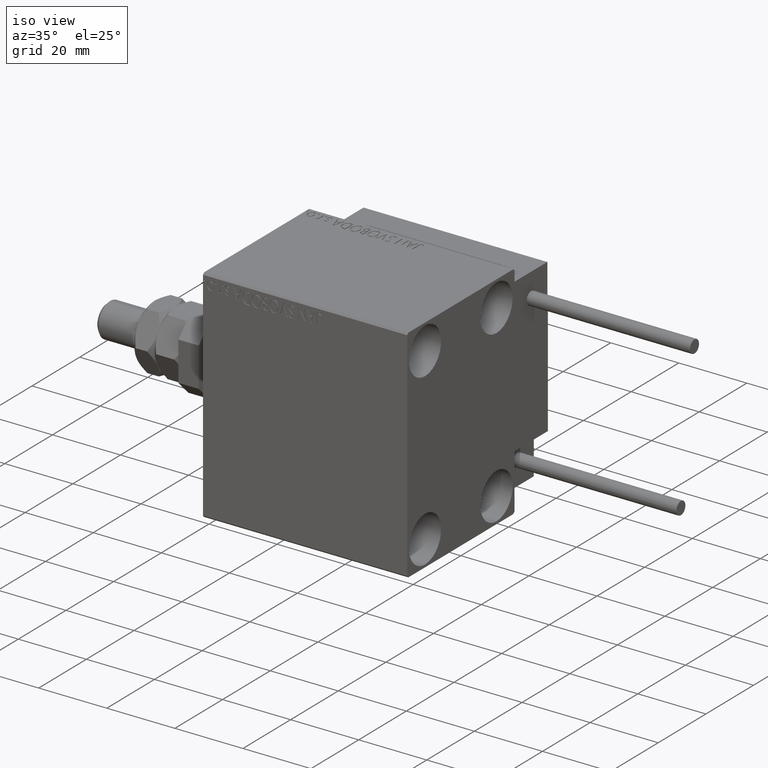
[diagram: clean part render]
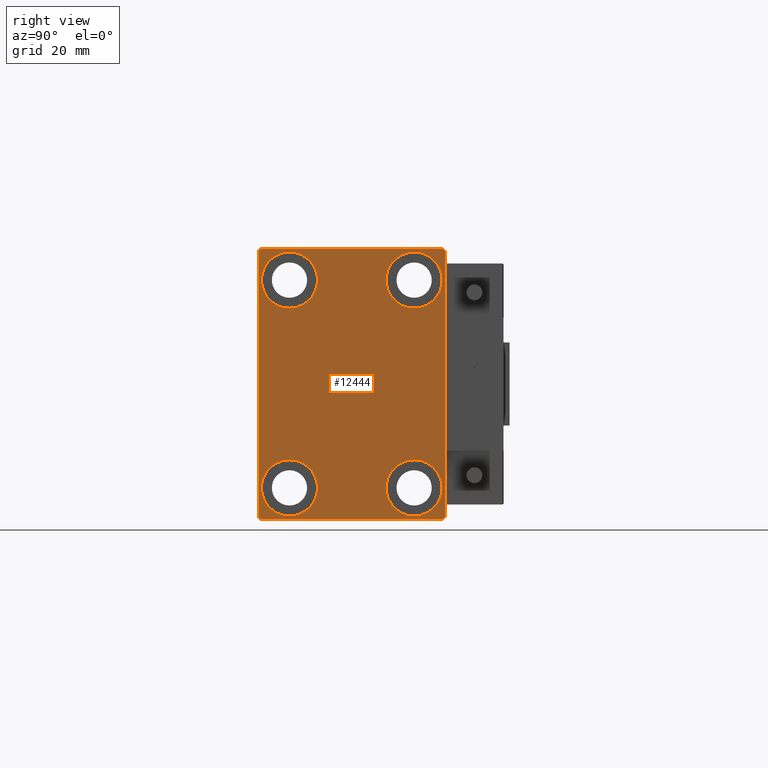
[diagram: tour spotlight — one face highlighted and labeled with its STEP entity id]
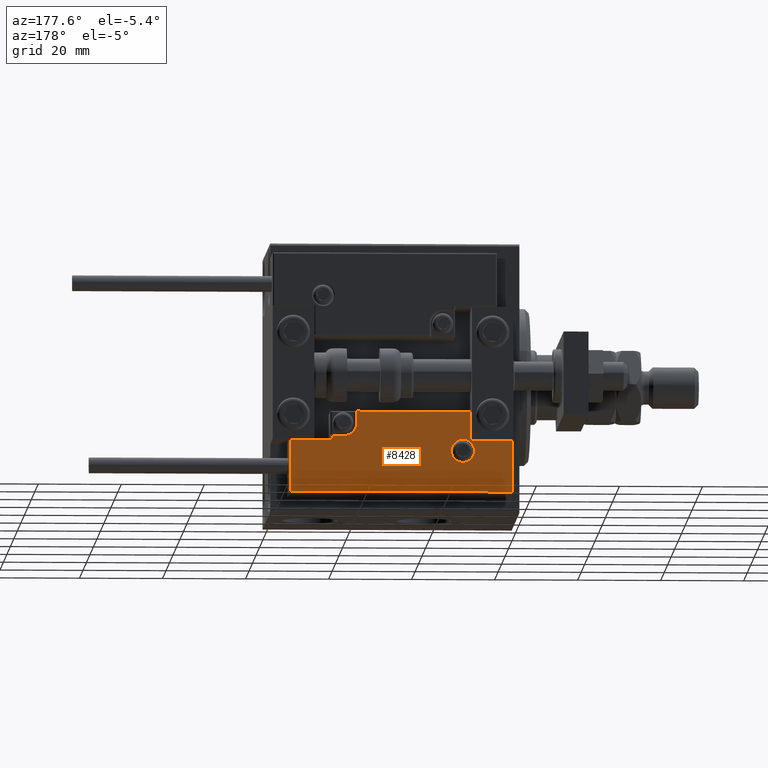
[diagram: tour spotlight — one face highlighted and labeled with its STEP entity id]
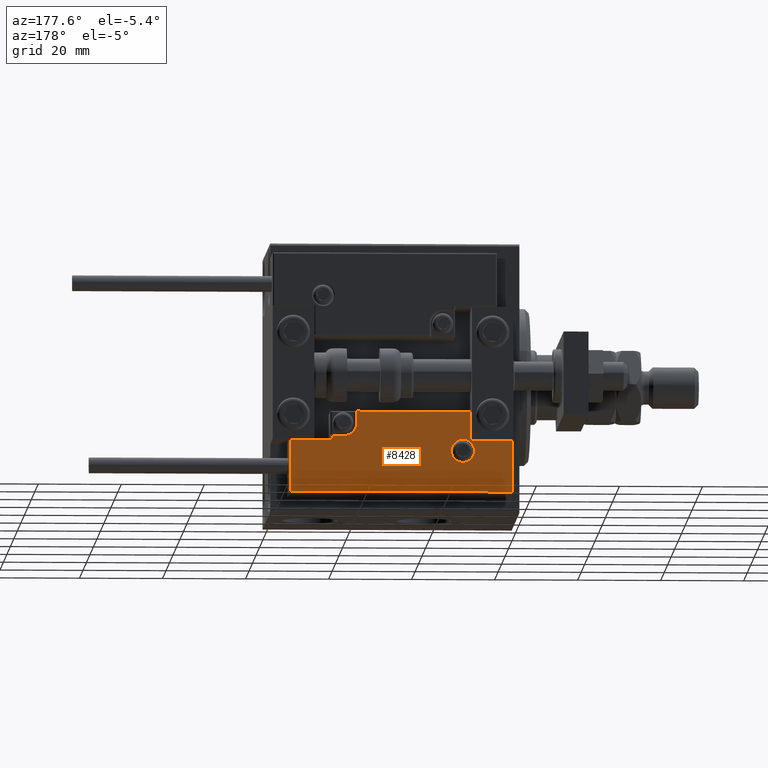
[diagram: tour spotlight — one face highlighted and labeled with its STEP entity id]
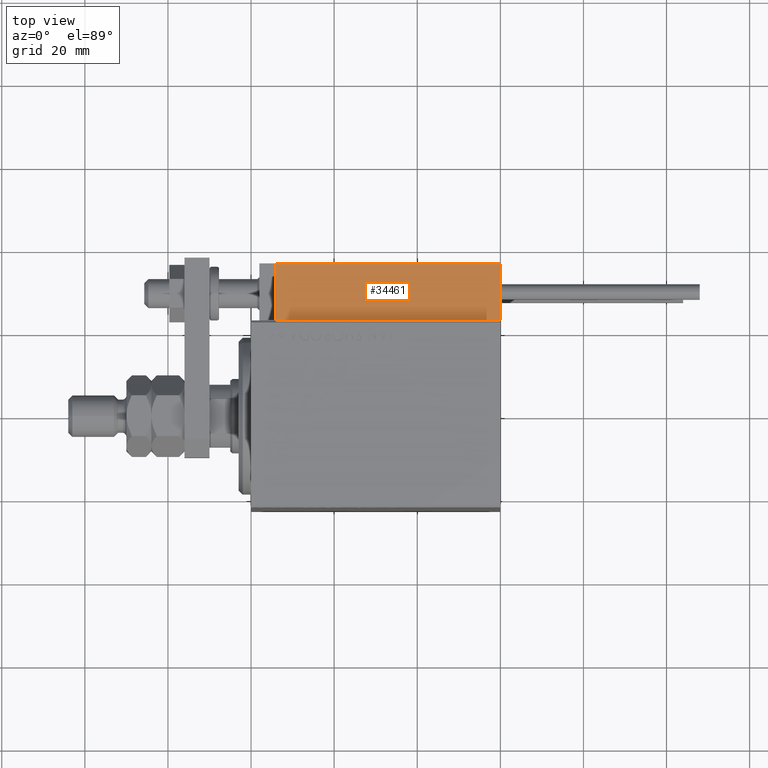
[diagram: tour spotlight — one face highlighted and labeled with its STEP entity id]
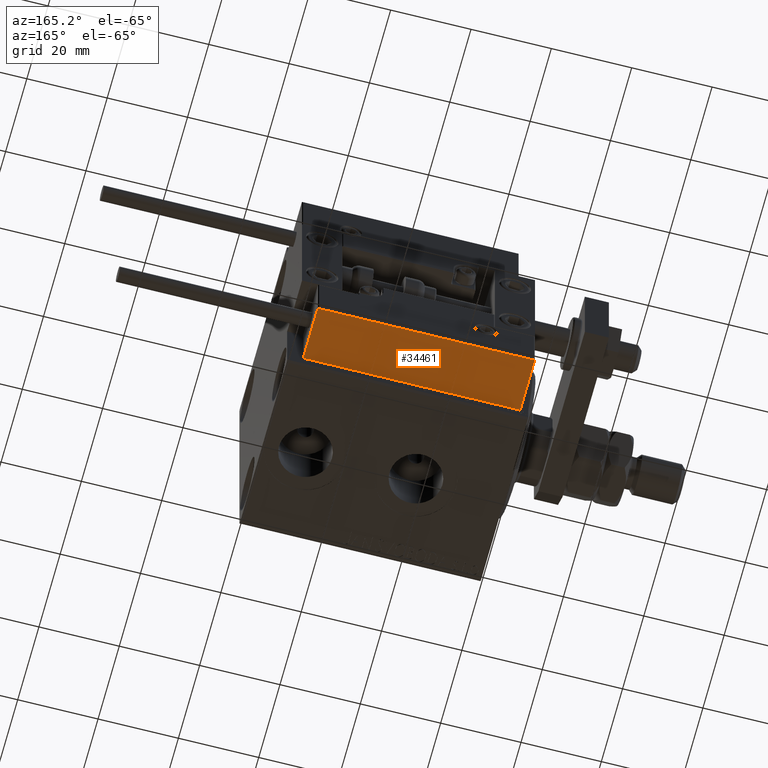
[diagram: tour spotlight — one face highlighted and labeled with its STEP entity id]
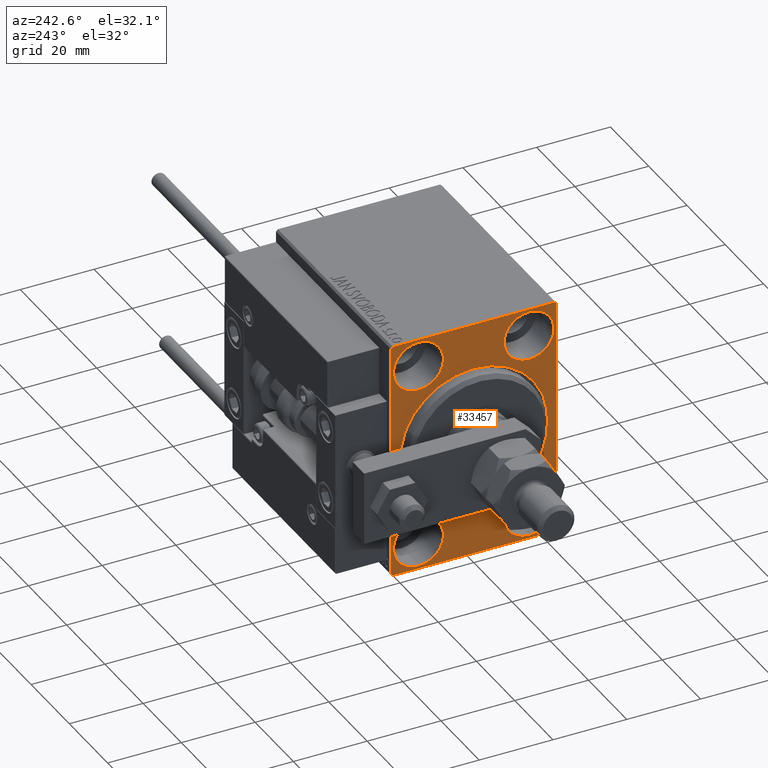
[diagram: tour spotlight — one face highlighted and labeled with its STEP entity id]
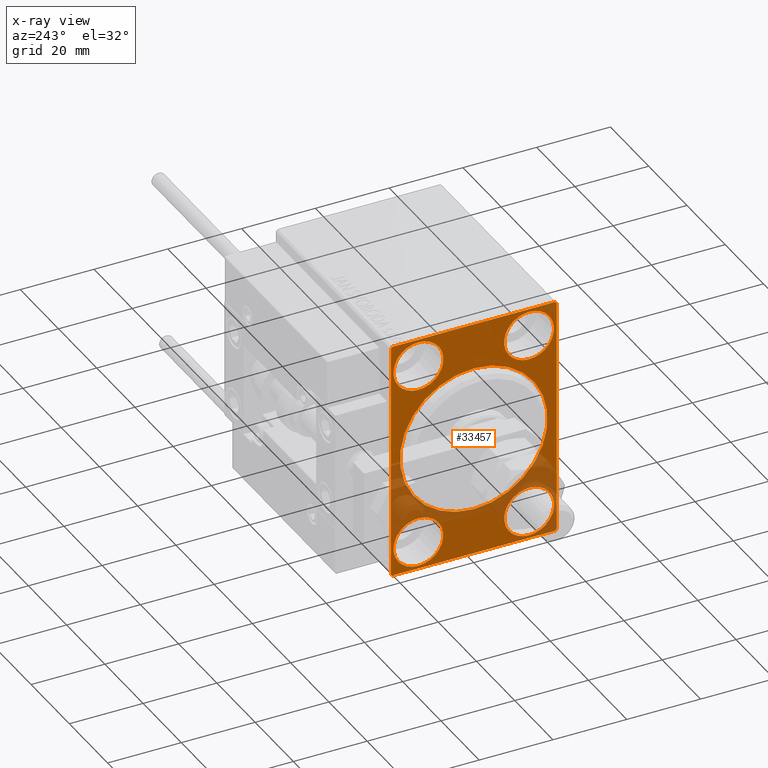
[diagram: x-ray of the same camera — body ghosted, this tour face saturated]
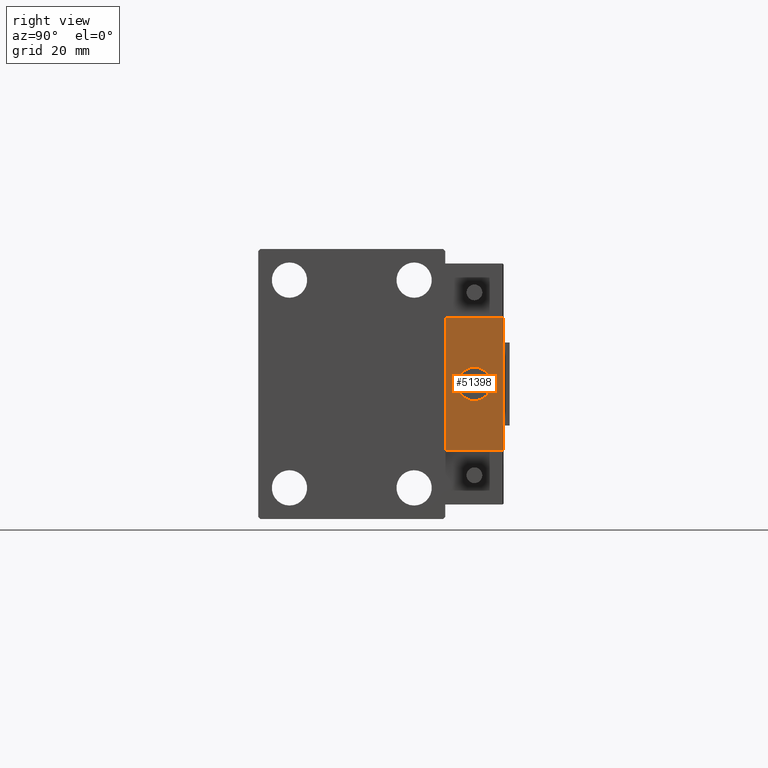
[diagram: tour spotlight — one face highlighted and labeled with its STEP entity id]
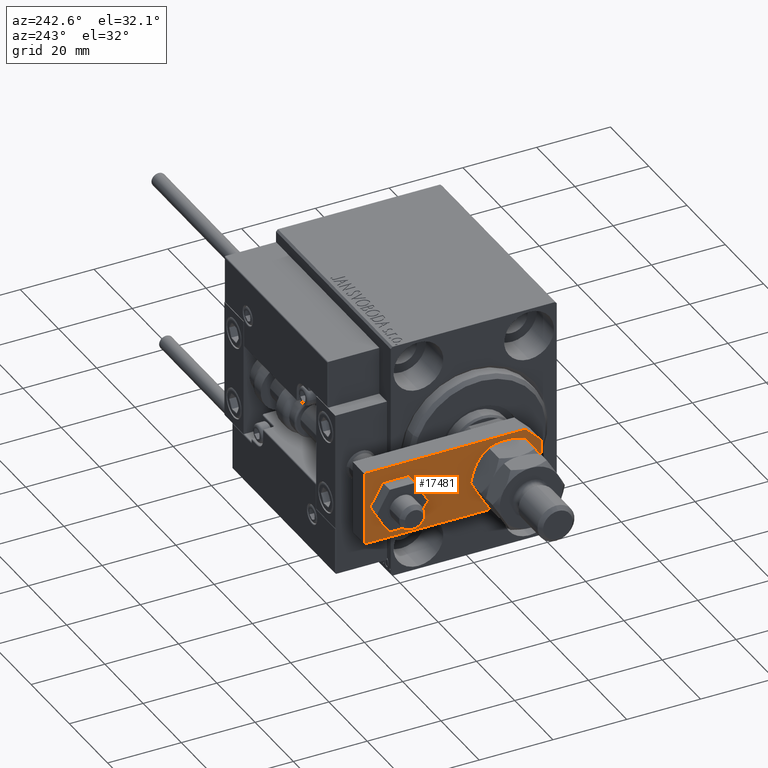
[diagram: tour spotlight — one face highlighted and labeled with its STEP entity id]
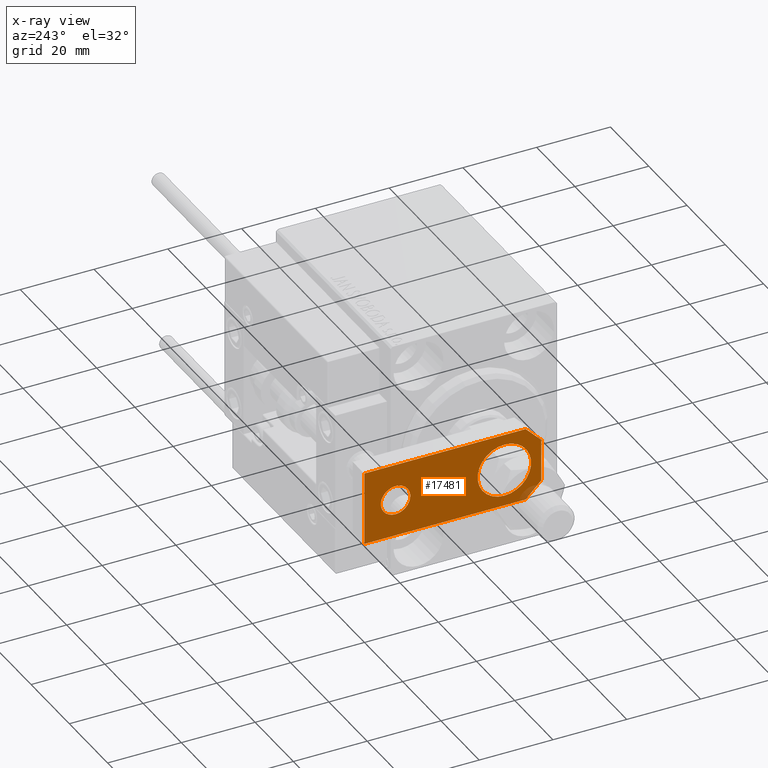
[diagram: x-ray of the same camera — body ghosted, this tour face saturated]
A machine part: a face-by-face anatomy tour. The part has 1332 B-rep faces; the first image is the clean iso view, then the 8 largest visible faces are spotlighted one at a time (largest first), each with its STEP entity span.

Face 1 — right view, entity #12444. In plain terms, the highlighted planar face has unit normal (1, 0, 0).
Definition (entity closure, byte-faithful):
#27 = CARTESIAN_POINT ( 'NONE',  ( 60.00000000000000000, 27.25000000000014921, 27.24999999999976907 ) ) ;
#273 = CARTESIAN_POINT ( 'NONE',  ( 60.00000000000000000, 15.00000000000000355, 18.25000000000000355 ) ) ;
#417 = VECTOR ( 'NONE', #29054, 1000.000000000000000 ) ;
#1256 = CARTESIAN_POINT ( 'NONE',  ( 60.00000000000000000, -15.00000000000000355, -31.75000000000000000 ) ) ;
#1555 = CIRCLE ( 'NONE', #5756, 6.749999999999999112 ) ;
#1924 = ORIENTED_EDGE ( 'NONE', *, *, #23245, .T. ) ;
#1960 = EDGE_CURVE ( 'NONE', #3869, #6904, #12067, .T. ) ;
#2013 = LINE ( 'NONE', #29304, #32464 ) ;
#2579 = VERTEX_POINT ( 'NONE', #20938 ) ;
#3225 = DIRECTION ( 'NONE',  ( 0.000000000000000000, 0.000000000000000000, 1.000000000000000000 ) ) ;
#3260 = CARTESIAN_POINT ( 'NONE',  ( 60.00000000000000000, 21.99999999999998579, -32.50000000000000711 ) ) ;
#3636 = DIRECTION ( 'NONE',  ( 0.000000000000000000, 0.000000000000000000, 1.000000000000000000 ) ) ;
#3826 = ORIENTED_EDGE ( 'NONE', *, *, #51529, .T. ) ;
#3869 = VERTEX_POINT ( 'NONE', #20628 ) ;
#4327 = CARTESIAN_POINT ( 'NONE',  ( 60.00000000000000000, -14.99999999999999645, 25.00000000000000000 ) ) ;
#4329 = VERTEX_POINT ( 'NONE', #39154 ) ;
#4412 = DIRECTION ( 'NONE',  ( -1.000000000000000000, -0.000000000000000000, -0.000000000000000000 ) ) ;
#4493 = LINE ( 'NONE', #44660, #27951 ) ;
#5719 = CARTESIAN_POINT ( 'NONE',  ( 60.00000000000000000, -15.00000000000000355, -25.00000000000000000 ) ) ;
#5756 = AXIS2_PLACEMENT_3D ( 'NONE', #15301, #39170, #3225 ) ;
#5982 = DIRECTION ( 'NONE',  ( -1.000000000000000000, -0.000000000000000000, -0.000000000000000000 ) ) ;
#6208 = ORIENTED_EDGE ( 'NONE', *, *, #49483, .T. ) ;
#6904 = VERTEX_POINT ( 'NONE', #51288 ) ;
#7004 = DIRECTION ( 'NONE',  ( 0.000000000000000000, 0.000000000000000000, 1.000000000000000000 ) ) ;
#7782 = CIRCLE ( 'NONE', #40465, 6.749999999999999112 ) ;
#7917 = EDGE_CURVE ( 'NONE', #45274, #4329, #18265, .T. ) ;
#8173 = CARTESIAN_POINT ( 'NONE',  ( 60.00000000000000000, -22.50000000000000711, -32.00000000000000711 ) ) ;
#8426 = DIRECTION ( 'NONE',  ( 0.000000000000000000, -0.7071067811865474617, -0.7071067811865474617 ) ) ;
#8581 = ORIENTED_EDGE ( 'NONE', *, *, #19242, .T. ) ;
#9589 = DIRECTION ( 'NONE',  ( -0.000000000000000000, 0.7071067811865376918, 0.7071067811865574537 ) ) ;
#10057 = AXIS2_PLACEMENT_3D ( 'NONE', #21516, #42532, #18379 ) ;
#10180 = DIRECTION ( 'NONE',  ( 0.000000000000000000, 0.000000000000000000, 1.000000000000000000 ) ) ;
#10753 = CARTESIAN_POINT ( 'NONE',  ( 60.00000000000000000, 22.49999999999999289, 32.50000000000000000 ) ) ;
#11885 = DIRECTION ( 'NONE',  ( -1.000000000000000000, -0.000000000000000000, -0.000000000000000000 ) ) ;
#12067 = CIRCLE ( 'NONE', #27982, 6.749999999999999112 ) ;
#12444 = ADVANCED_FACE ( 'NONE', ( #26517, #21781, #22043, #17855, #42285 ), #46231, .T. ) ;
#12983 = CARTESIAN_POINT ( 'NONE',  ( 60.00000000000000000, -14.99999999999999645, 31.75000000000000000 ) ) ;
#13070 = CARTESIAN_POINT ( 'NONE',  ( 60.00000000000000000, -22.50000000000000711, 32.49999999999999289 ) ) ;
#13713 = ORIENTED_EDGE ( 'NONE', *, *, #43959, .T. ) ;
#15301 = CARTESIAN_POINT ( 'NONE',  ( 60.00000000000000000, -14.99999999999999645, 25.00000000000000000 ) ) ;
#15399 = CARTESIAN_POINT ( 'NONE',  ( 60.00000000000000000, -22.50000000000000711, -32.50000000000000711 ) ) ;
#15578 = CARTESIAN_POINT ( 'NONE',  ( 60.00000000000000000, 15.00000000000000355, 31.75000000000000000 ) ) ;
#16840 = CARTESIAN_POINT ( 'NONE',  ( 60.00000000000000000, 15.00000000000000355, 25.00000000000000000 ) ) ;
#17089 = CARTESIAN_POINT ( 'NONE',  ( 60.00000000000000000, 22.50000000000000000, -31.99999999999999289 ) ) ;
#17855 = FACE_BOUND ( 'NONE', #40592, .T. ) ;
#17928 = CARTESIAN_POINT ( 'NONE',  ( 60.00000000000000000, 21.99999999999999289, 32.50000000000000000 ) ) ;
#18211 = EDGE_CURVE ( 'NONE', #38703, #30179, #19323, .T. ) ;
#18265 = CIRCLE ( 'NONE', #50132, 6.749999999999999112 ) ;
#18379 = DIRECTION ( 'NONE',  ( 0.000000000000000000, 0.000000000000000000, -1.000000000000000000 ) ) ;
#19242 = EDGE_CURVE ( 'NONE', #34235, #34669, #23578, .T. ) ;
#19291 = CARTESIAN_POINT ( 'NONE',  ( 60.00000000000000000, -21.99999999999999289, 32.49999999999999289 ) ) ;
#19323 = LINE ( 'NONE', #15399, #45365 ) ;
#20310 = DIRECTION ( 'NONE',  ( -1.000000000000000000, -0.000000000000000000, -0.000000000000000000 ) ) ;
#20628 = CARTESIAN_POINT ( 'NONE',  ( 60.00000000000000000, 14.99999999999999645, -18.25000000000000355 ) ) ;
#20938 = CARTESIAN_POINT ( 'NONE',  ( 60.00000000000000000, 22.49999999999999289, 31.99999999999999289 ) ) ;
#21441 = CIRCLE ( 'NONE', #50839, 6.749999999999999112 ) ;
#21516 = CARTESIAN_POINT ( 'NONE',  ( 60.00000000000000000, 0.000000000000000000, 0.000000000000000000 ) ) ;
#21687 = DIRECTION ( 'NONE',  ( 0.000000000000000000, -1.067522139062650425E-16, 1.000000000000000000 ) ) ;
#21781 = FACE_BOUND ( 'NONE', #43479, .T. ) ;
#21903 = AXIS2_PLACEMENT_3D ( 'NONE', #16840, #11885, #36785 ) ;
#21971 = DIRECTION ( 'NONE',  ( -1.000000000000000000, -0.000000000000000000, -0.000000000000000000 ) ) ;
#22043 = FACE_BOUND ( 'NONE', #34847, .T. ) ;
#22325 = EDGE_CURVE ( 'NONE', #23885, #47452, #50677, .T. ) ;
#22441 = VERTEX_POINT ( 'NONE', #1256 ) ;
#23245 = EDGE_CURVE ( 'NONE', #22441, #36180, #7782, .T. ) ;
#23259 = CARTESIAN_POINT ( 'NONE',  ( 60.00000000000000000, -27.25000000000032330, -27.24999999999957012 ) ) ;
#23578 = CIRCLE ( 'NONE', #21903, 6.749999999999999112 ) ;
#23591 = CIRCLE ( 'NONE', #39512, 6.749999999999999112 ) ;
#23885 = VERTEX_POINT ( 'NONE', #17928 ) ;
#26131 = VECTOR ( 'NONE', #9589, 999.9999999999998863 ) ;
#26517 = FACE_BOUND ( 'NONE', #48761, .T. ) ;
#26863 = CARTESIAN_POINT ( 'NONE',  ( 60.00000000000000000, -22.50000000000000711, 31.99999999999999289 ) ) ;
#27002 = DIRECTION ( 'NONE',  ( -1.000000000000000000, -0.000000000000000000, -0.000000000000000000 ) ) ;
#27204 = ORIENTED_EDGE ( 'NONE', *, *, #33979, .T. ) ;
#27217 = DIRECTION ( 'NONE',  ( 0.000000000000000000, 1.000000000000000000, 0.000000000000000000 ) ) ;
#27641 = VECTOR ( 'NONE', #39265, 1000.000000000000000 ) ;
#27951 = VECTOR ( 'NONE', #8426, 1000.000000000000114 ) ;
#27982 = AXIS2_PLACEMENT_3D ( 'NONE', #35285, #5982, #47411 ) ;
#28142 = EDGE_CURVE ( 'NONE', #47452, #35809, #4493, .T. ) ;
#29054 = DIRECTION ( 'NONE',  ( 0.000000000000000000, 0.000000000000000000, -1.000000000000000000 ) ) ;
#29304 = CARTESIAN_POINT ( 'NONE',  ( 60.00000000000000000, 22.50000000000000000, -32.50000000000000711 ) ) ;
#29412 = CIRCLE ( 'NONE', #32746, 6.749999999999999112 ) ;
#30179 = VERTEX_POINT ( 'NONE', #3260 ) ;
#30631 = ORIENTED_EDGE ( 'NONE', *, *, #1960, .T. ) ;
#30640 = ORIENTED_EDGE ( 'NONE', *, *, #49653, .T. ) ;
#30935 = EDGE_CURVE ( 'NONE', #35809, #41380, #49821, .T. ) ;
#32464 = VECTOR ( 'NONE', #21687, 1000.000000000000000 ) ;
#32746 = AXIS2_PLACEMENT_3D ( 'NONE', #35128, #27002, #3636 ) ;
#33377 = ORIENTED_EDGE ( 'NONE', *, *, #37333, .T. ) ;
#33734 = VECTOR ( 'NONE', #34890, 1000.000000000000000 ) ;
#33979 = EDGE_CURVE ( 'NONE', #34669, #34235, #21441, .T. ) ;
#34235 = VERTEX_POINT ( 'NONE', #15578 ) ;
#34669 = VERTEX_POINT ( 'NONE', #273 ) ;
#34847 = EDGE_LOOP ( 'NONE', ( #27204, #8581 ) ) ;
#34890 = DIRECTION ( 'NONE',  ( 0.000000000000000000, -1.000000000000000000, -1.541976423090495387E-16 ) ) ;
#35128 = CARTESIAN_POINT ( 'NONE',  ( 60.00000000000000000, 14.99999999999999645, -25.00000000000000000 ) ) ;
#35285 = CARTESIAN_POINT ( 'NONE',  ( 60.00000000000000000, 14.99999999999999645, -25.00000000000000000 ) ) ;
#35809 = VERTEX_POINT ( 'NONE', #26863 ) ;
#35901 = DIRECTION ( 'NONE',  ( 0.000000000000000000, 0.000000000000000000, 1.000000000000000000 ) ) ;
#36180 = VERTEX_POINT ( 'NONE', #45411 ) ;
#36268 = ORIENTED_EDGE ( 'NONE', *, *, #22325, .T. ) ;
#36328 = DIRECTION ( 'NONE',  ( 0.000000000000000000, 0.000000000000000000, 1.000000000000000000 ) ) ;
#36578 = ORIENTED_EDGE ( 'NONE', *, *, #28142, .T. ) ;
#36785 = DIRECTION ( 'NONE',  ( 0.000000000000000000, 0.000000000000000000, 1.000000000000000000 ) ) ;
#37333 = EDGE_CURVE ( 'NONE', #44052, #2579, #2013, .T. ) ;
#37675 = ORIENTED_EDGE ( 'NONE', *, *, #45830, .T. ) ;
#37729 = EDGE_CURVE ( 'NONE', #2579, #23885, #51762, .T. ) ;
#38680 = ORIENTED_EDGE ( 'NONE', *, *, #18211, .T. ) ;
#38703 = VERTEX_POINT ( 'NONE', #39643 ) ;
#39154 = CARTESIAN_POINT ( 'NONE',  ( 60.00000000000000000, -14.99999999999999645, 18.25000000000000355 ) ) ;
#39170 = DIRECTION ( 'NONE',  ( -1.000000000000000000, -0.000000000000000000, -0.000000000000000000 ) ) ;
#39265 = DIRECTION ( 'NONE',  ( -0.000000000000000000, 0.7071067811865378028, -0.7071067811865573427 ) ) ;
#39456 = ORIENTED_EDGE ( 'NONE', *, *, #37729, .T. ) ;
#39512 = AXIS2_PLACEMENT_3D ( 'NONE', #40099, #4412, #35901 ) ;
#39514 = CARTESIAN_POINT ( 'NONE',  ( 60.00000000000000000, 15.00000000000000355, 25.00000000000000000 ) ) ;
#39580 = EDGE_LOOP ( 'NONE', ( #36268, #36578, #41115, #37675, #38680, #3826, #33377, #39456 ) ) ;
#39643 = CARTESIAN_POINT ( 'NONE',  ( 60.00000000000000000, -22.00000000000002132, -32.50000000000000711 ) ) ;
#40099 = CARTESIAN_POINT ( 'NONE',  ( 60.00000000000000000, -15.00000000000000355, -25.00000000000000000 ) ) ;
#40171 = DIRECTION ( 'NONE',  ( -0.000000000000000000, -0.7071067811865425767, 0.7071067811865525687 ) ) ;
#40465 = AXIS2_PLACEMENT_3D ( 'NONE', #5719, #21971, #10180 ) ;
#40592 = EDGE_LOOP ( 'NONE', ( #1924, #30640 ) ) ;
#40813 = ORIENTED_EDGE ( 'NONE', *, *, #7917, .T. ) ;
#41115 = ORIENTED_EDGE ( 'NONE', *, *, #30935, .T. ) ;
#41348 = CARTESIAN_POINT ( 'NONE',  ( 60.00000000000000000, 27.25000000000030553, -27.24999999999954881 ) ) ;
#41380 = VERTEX_POINT ( 'NONE', #8173 ) ;
#42285 = FACE_OUTER_BOUND ( 'NONE', #39580, .T. ) ;
#42532 = DIRECTION ( 'NONE',  ( 1.000000000000000000, 0.000000000000000000, 0.000000000000000000 ) ) ;
#42686 = DIRECTION ( 'NONE',  ( -1.000000000000000000, -0.000000000000000000, -0.000000000000000000 ) ) ;
#43479 = EDGE_LOOP ( 'NONE', ( #13713, #40813 ) ) ;
#43959 = EDGE_CURVE ( 'NONE', #4329, #45274, #1555, .T. ) ;
#44052 = VERTEX_POINT ( 'NONE', #17089 ) ;
#44660 = CARTESIAN_POINT ( 'NONE',  ( 60.00000000000000000, -27.25000000000000000, 27.25000000000000000 ) ) ;
#45274 = VERTEX_POINT ( 'NONE', #12983 ) ;
#45308 = LINE ( 'NONE', #41348, #26131 ) ;
#45365 = VECTOR ( 'NONE', #27217, 1000.000000000000000 ) ;
#45411 = CARTESIAN_POINT ( 'NONE',  ( 60.00000000000000000, -15.00000000000000355, -18.25000000000000355 ) ) ;
#45830 = EDGE_CURVE ( 'NONE', #41380, #38703, #49037, .T. ) ;
#46231 = PLANE ( 'NONE',  #10057 ) ;
#46780 = VECTOR ( 'NONE', #40171, 999.9999999999998863 ) ;
#47411 = DIRECTION ( 'NONE',  ( 0.000000000000000000, 0.000000000000000000, 1.000000000000000000 ) ) ;
#47452 = VERTEX_POINT ( 'NONE', #19291 ) ;
#48761 = EDGE_LOOP ( 'NONE', ( #6208, #30631 ) ) ;
#49037 = LINE ( 'NONE', #23259, #27641 ) ;
#49483 = EDGE_CURVE ( 'NONE', #6904, #3869, #29412, .T. ) ;
#49653 = EDGE_CURVE ( 'NONE', #36180, #22441, #23591, .T. ) ;
#49821 = LINE ( 'NONE', #13070, #417 ) ;
#50132 = AXIS2_PLACEMENT_3D ( 'NONE', #4327, #20310, #36328 ) ;
#50677 = LINE ( 'NONE', #10753, #33734 ) ;
#50839 = AXIS2_PLACEMENT_3D ( 'NONE', #39514, #42686, #7004 ) ;
#51288 = CARTESIAN_POINT ( 'NONE',  ( 60.00000000000000000, 14.99999999999999645, -31.75000000000000000 ) ) ;
#51529 = EDGE_CURVE ( 'NONE', #30179, #44052, #45308, .T. ) ;
#51762 = LINE ( 'NONE', #27, #46780 ) ;

Face 2 — auxiliary view, entity #8428. In plain terms, the highlighted planar face has unit normal (0, 1, -0).
Definition (entity closure, byte-faithful):
#340 = LINE ( 'NONE', #23454, #34381 ) ;
#999 = CARTESIAN_POINT ( 'NONE',  ( -16.99999999999999289, 7.300000000000003375, 14.00000000000000000 ) ) ;
#1379 = DIRECTION ( 'NONE',  ( 0.000000000000000000, -0.000000000000000000, -1.000000000000000000 ) ) ;
#2137 = CARTESIAN_POINT ( 'NONE',  ( 17.00000000000000000, 6.300000000000003375, 14.00000000000000000 ) ) ;
#2582 = VERTEX_POINT ( 'NONE', #13605 ) ;
#3258 = CARTESIAN_POINT ( 'NONE',  ( -16.69999999999999218, 0.3000000000000032085, 14.00000000000000000 ) ) ;
#3281 = CIRCLE ( 'NONE', #32601, 3.299999999999997158 ) ;
#3428 = VERTEX_POINT ( 'NONE', #30970 ) ;
#5210 = DIRECTION ( 'NONE',  ( 0.000000000000000000, 1.000000000000000000, -0.000000000000000000 ) ) ;
#5319 = CARTESIAN_POINT ( 'NONE',  ( -14.79999999999994920, 9.800000000000004263, 14.00000000000000000 ) ) ;
#6350 = DIRECTION ( 'NONE',  ( 1.000000000000000000, 0.000000000000000000, 0.000000000000000000 ) ) ;
#7596 = DIRECTION ( 'NONE',  ( 0.000000000000000000, -0.000000000000000000, -1.000000000000000000 ) ) ;
#7633 = ORIENTED_EDGE ( 'NONE', *, *, #15531, .T. ) ;
#8136 = EDGE_LOOP ( 'NONE', ( #36714, #21343, #46533, #19732, #28213, #39773, #37479, #41757, #32337, #43828, #27646 ) ) ;
#8332 = VERTEX_POINT ( 'NONE', #41515 ) ;
#8413 = EDGE_CURVE ( 'NONE', #23125, #3428, #9756, .T. ) ;
#8428 = ADVANCED_FACE ( 'NONE', ( #34135, #14206 ), #21536, .T. ) ;
#9040 = EDGE_CURVE ( 'NONE', #3428, #8332, #36277, .T. ) ;
#9043 = VECTOR ( 'NONE', #37465, 1000.000000000000000 ) ;
#9665 = EDGE_CURVE ( 'NONE', #27235, #23125, #3281, .T. ) ;
#9723 = CARTESIAN_POINT ( 'NONE',  ( -26.69999999999993534, 19.70000000000002061, 14.00000000000000000 ) ) ;
#9756 = LINE ( 'NONE', #2137, #28371 ) ;
#10675 = DIRECTION ( 'NONE',  ( -0.000000000000000000, 1.000000000000000000, -0.000000000000000000 ) ) ;
#10955 = EDGE_CURVE ( 'NONE', #8332, #11877, #49238, .T. ) ;
#11042 = AXIS2_PLACEMENT_3D ( 'NONE', #5319, #1379, #49172 ) ;
#11529 = CARTESIAN_POINT ( 'NONE',  ( 13.99999999999999822, 3.000000000000002665, 14.00000000000000000 ) ) ;
#11877 = VERTEX_POINT ( 'NONE', #22547 ) ;
#13605 = CARTESIAN_POINT ( 'NONE',  ( -17.59999999999994813, 9.800000000000004263, 14.00000000000000000 ) ) ;
#14105 = VECTOR ( 'NONE', #20776, 1000.000000000000000 ) ;
#14206 = FACE_OUTER_BOUND ( 'NONE', #8136, .T. ) ;
#15084 = AXIS2_PLACEMENT_3D ( 'NONE', #28575, #17019, #44618 ) ;
#15531 = EDGE_CURVE ( 'NONE', #28009, #2582, #37690, .T. ) ;
#15869 = VECTOR ( 'NONE', #32936, 1000.000000000000000 ) ;
#16928 = DIRECTION ( 'NONE',  ( 0.000000000000000000, -1.000000000000000000, 0.000000000000000000 ) ) ;
#17019 = DIRECTION ( 'NONE',  ( 0.000000000000000000, -0.000000000000000000, -1.000000000000000000 ) ) ;
#17648 = EDGE_CURVE ( 'NONE', #27445, #51681, #340, .T. ) ;
#17868 = VECTOR ( 'NONE', #5210, 1000.000000000000000 ) ;
#17880 = DIRECTION ( 'NONE',  ( 1.000000000000000000, 5.782411586589357639E-16, -0.000000000000000000 ) ) ;
#18497 = EDGE_CURVE ( 'NONE', #44042, #40477, #25844, .T. ) ;
#18508 = DIRECTION ( 'NONE',  ( 1.000000000000000000, -0.000000000000000000, 0.000000000000000000 ) ) ;
#19732 = ORIENTED_EDGE ( 'NONE', *, *, #9665, .T. ) ;
#20776 = DIRECTION ( 'NONE',  ( 9.912705577010318647E-16, 1.000000000000000000, 0.000000000000000000 ) ) ;
#21343 = ORIENTED_EDGE ( 'NONE', *, *, #32350, .T. ) ;
#21536 = PLANE ( 'NONE',  #32564 ) ;
#21890 = CARTESIAN_POINT ( 'NONE',  ( -16.69999999999999218, 3.252606517456513302E-15, 14.00000000000000000 ) ) ;
#22471 = LINE ( 'NONE', #23263, #37525 ) ;
#22547 = CARTESIAN_POINT ( 'NONE',  ( 26.70000000000006324, 7.300000000000007816, 14.00000000000000000 ) ) ;
#23125 = VERTEX_POINT ( 'NONE', #31222 ) ;
#23263 = CARTESIAN_POINT ( 'NONE',  ( 10.69999999999999929, 3.000000000000003109, 14.00000000000000000 ) ) ;
#23365 = ORIENTED_EDGE ( 'NONE', *, *, #50451, .T. ) ;
#23454 = CARTESIAN_POINT ( 'NONE',  ( -26.99999999999993605, 19.70000000000002061, 14.00000000000000000 ) ) ;
#23953 = EDGE_CURVE ( 'NONE', #11877, #27445, #49327, .T. ) ;
#24352 = CARTESIAN_POINT ( 'NONE',  ( 10.69999999999999929, 3.000000000000003109, 14.00000000000000000 ) ) ;
#24359 = LINE ( 'NONE', #36430, #38718 ) ;
#25021 = VERTEX_POINT ( 'NONE', #49451 ) ;
#25392 = LINE ( 'NONE', #999, #9043 ) ;
#25749 = CARTESIAN_POINT ( 'NONE',  ( 0.000000000000000000, 0.000000000000000000, 14.00000000000000000 ) ) ;
#25844 = LINE ( 'NONE', #21890, #28581 ) ;
#27235 = VERTEX_POINT ( 'NONE', #24352 ) ;
#27445 = VERTEX_POINT ( 'NONE', #48223 ) ;
#27646 = ORIENTED_EDGE ( 'NONE', *, *, #41826, .T. ) ;
#28009 = VERTEX_POINT ( 'NONE', #37846 ) ;
#28213 = ORIENTED_EDGE ( 'NONE', *, *, #8413, .T. ) ;
#28371 = VECTOR ( 'NONE', #17880, 1000.000000000000000 ) ;
#28575 = CARTESIAN_POINT ( 'NONE',  ( -14.79999999999994920, 9.800000000000004263, 14.00000000000000000 ) ) ;
#28581 = VECTOR ( 'NONE', #16928, 1000.000000000000000 ) ;
#29251 = CARTESIAN_POINT ( 'NONE',  ( 27.00000000000006395, 7.300000000000007816, 14.00000000000000000 ) ) ;
#30304 = LINE ( 'NONE', #30824, #41516 ) ;
#30824 = CARTESIAN_POINT ( 'NONE',  ( 11.00000000000000000, 0.3000000000000032085, 14.00000000000000000 ) ) ;
#30970 = CARTESIAN_POINT ( 'NONE',  ( 16.69999999999999929, 6.300000000000003375, 14.00000000000000000 ) ) ;
#31222 = CARTESIAN_POINT ( 'NONE',  ( 13.99999999999999822, 6.300000000000001599, 14.00000000000000000 ) ) ;
#31973 = CIRCLE ( 'NONE', #11042, 2.800000000000000266 ) ;
#32327 = CARTESIAN_POINT ( 'NONE',  ( -26.69999999999994600, 7.300000000000005151, 14.00000000000000000 ) ) ;
#32337 = ORIENTED_EDGE ( 'NONE', *, *, #17648, .T. ) ;
#32350 = EDGE_CURVE ( 'NONE', #40477, #25021, #30304, .T. ) ;
#32564 = AXIS2_PLACEMENT_3D ( 'NONE', #25749, #42305, #6350 ) ;
#32601 = AXIS2_PLACEMENT_3D ( 'NONE', #11529, #7596, #34876 ) ;
#32936 = DIRECTION ( 'NONE',  ( 1.000000000000000000, -1.734723475976796001E-16, 0.000000000000000000 ) ) ;
#34135 = FACE_BOUND ( 'NONE', #34971, .T. ) ;
#34381 = VECTOR ( 'NONE', #51317, 1000.000000000000000 ) ;
#34876 = DIRECTION ( 'NONE',  ( 1.000000000000000000, 0.000000000000000000, 0.000000000000000000 ) ) ;
#34971 = EDGE_LOOP ( 'NONE', ( #7633, #23365 ) ) ;
#36277 = LINE ( 'NONE', #44966, #14105 ) ;
#36430 = CARTESIAN_POINT ( 'NONE',  ( -26.69999999999994600, 7.000000000000005329, 14.00000000000000000 ) ) ;
#36714 = ORIENTED_EDGE ( 'NONE', *, *, #18497, .T. ) ;
#37413 = EDGE_CURVE ( 'NONE', #25021, #27235, #22471, .T. ) ;
#37465 = DIRECTION ( 'NONE',  ( 1.000000000000000000, -1.734723475976815230E-16, 0.000000000000000000 ) ) ;
#37479 = ORIENTED_EDGE ( 'NONE', *, *, #10955, .T. ) ;
#37525 = VECTOR ( 'NONE', #10675, 1000.000000000000000 ) ;
#37690 = CIRCLE ( 'NONE', #15084, 2.800000000000000266 ) ;
#37846 = CARTESIAN_POINT ( 'NONE',  ( -11.99999999999994849, 9.800000000000004263, 14.00000000000000000 ) ) ;
#38718 = VECTOR ( 'NONE', #40377, 1000.000000000000000 ) ;
#39773 = ORIENTED_EDGE ( 'NONE', *, *, #9040, .T. ) ;
#40377 = DIRECTION ( 'NONE',  ( -8.006416042969869188E-16, -1.000000000000000000, 0.000000000000000000 ) ) ;
#40477 = VERTEX_POINT ( 'NONE', #3258 ) ;
#41166 = CARTESIAN_POINT ( 'NONE',  ( 26.70000000000006324, 20.00000000000001776, 14.00000000000000000 ) ) ;
#41515 = CARTESIAN_POINT ( 'NONE',  ( 16.69999999999999929, 7.300000000000009592, 14.00000000000000000 ) ) ;
#41516 = VECTOR ( 'NONE', #18508, 1000.000000000000000 ) ;
#41757 = ORIENTED_EDGE ( 'NONE', *, *, #23953, .T. ) ;
#41826 = EDGE_CURVE ( 'NONE', #43999, #44042, #25392, .T. ) ;
#42305 = DIRECTION ( 'NONE',  ( -0.000000000000000000, 0.000000000000000000, 1.000000000000000000 ) ) ;
#43828 = ORIENTED_EDGE ( 'NONE', *, *, #51029, .T. ) ;
#43904 = CARTESIAN_POINT ( 'NONE',  ( -16.69999999999999218, 7.300000000000003375, 14.00000000000000000 ) ) ;
#43999 = VERTEX_POINT ( 'NONE', #32327 ) ;
#44042 = VERTEX_POINT ( 'NONE', #43904 ) ;
#44618 = DIRECTION ( 'NONE',  ( 1.000000000000000000, 0.000000000000000000, 0.000000000000000000 ) ) ;
#44966 = CARTESIAN_POINT ( 'NONE',  ( 16.69999999999999929, 7.000000000000009770, 14.00000000000000000 ) ) ;
#46533 = ORIENTED_EDGE ( 'NONE', *, *, #37413, .T. ) ;
#48223 = CARTESIAN_POINT ( 'NONE',  ( 26.70000000000006324, 19.70000000000001705, 14.00000000000000000 ) ) ;
#49172 = DIRECTION ( 'NONE',  ( 1.000000000000000000, 0.000000000000000000, 0.000000000000000000 ) ) ;
#49238 = LINE ( 'NONE', #29251, #15869 ) ;
#49327 = LINE ( 'NONE', #41166, #17868 ) ;
#49451 = CARTESIAN_POINT ( 'NONE',  ( 10.69999999999999929, 0.3000000000000032085, 14.00000000000000000 ) ) ;
#50451 = EDGE_CURVE ( 'NONE', #2582, #28009, #31973, .T. ) ;
#51029 = EDGE_CURVE ( 'NONE', #51681, #43999, #24359, .T. ) ;
#51317 = DIRECTION ( 'NONE',  ( -1.000000000000000000, 6.424901762877063495E-17, -0.000000000000000000 ) ) ;
#51681 = VERTEX_POINT ( 'NONE', #9723 ) ;

Face 3 — auxiliary view, entity #8428. In plain terms, the highlighted planar face has unit normal (-0, 1, -0).
Definition (entity closure, byte-faithful):
#340 = LINE ( 'NONE', #23454, #34381 ) ;
#999 = CARTESIAN_POINT ( 'NONE',  ( -16.99999999999999289, 7.300000000000003375, 14.00000000000000000 ) ) ;
#1379 = DIRECTION ( 'NONE',  ( 0.000000000000000000, -0.000000000000000000, -1.000000000000000000 ) ) ;
#2137 = CARTESIAN_POINT ( 'NONE',  ( 17.00000000000000000, 6.300000000000003375, 14.00000000000000000 ) ) ;
#2582 = VERTEX_POINT ( 'NONE', #13605 ) ;
#3258 = CARTESIAN_POINT ( 'NONE',  ( -16.69999999999999218, 0.3000000000000032085, 14.00000000000000000 ) ) ;
#3281 = CIRCLE ( 'NONE', #32601, 3.299999999999997158 ) ;
#3428 = VERTEX_POINT ( 'NONE', #30970 ) ;
#5210 = DIRECTION ( 'NONE',  ( 0.000000000000000000, 1.000000000000000000, -0.000000000000000000 ) ) ;
#5319 = CARTESIAN_POINT ( 'NONE',  ( -14.79999999999994920, 9.800000000000004263, 14.00000000000000000 ) ) ;
#6350 = DIRECTION ( 'NONE',  ( 1.000000000000000000, 0.000000000000000000, 0.000000000000000000 ) ) ;
#7596 = DIRECTION ( 'NONE',  ( 0.000000000000000000, -0.000000000000000000, -1.000000000000000000 ) ) ;
#7633 = ORIENTED_EDGE ( 'NONE', *, *, #15531, .T. ) ;
#8136 = EDGE_LOOP ( 'NONE', ( #36714, #21343, #46533, #19732, #28213, #39773, #37479, #41757, #32337, #43828, #27646 ) ) ;
#8332 = VERTEX_POINT ( 'NONE', #41515 ) ;
#8413 = EDGE_CURVE ( 'NONE', #23125, #3428, #9756, .T. ) ;
#8428 = ADVANCED_FACE ( 'NONE', ( #34135, #14206 ), #21536, .T. ) ;
#9040 = EDGE_CURVE ( 'NONE', #3428, #8332, #36277, .T. ) ;
#9043 = VECTOR ( 'NONE', #37465, 1000.000000000000000 ) ;
#9665 = EDGE_CURVE ( 'NONE', #27235, #23125, #3281, .T. ) ;
#9723 = CARTESIAN_POINT ( 'NONE',  ( -26.69999999999993534, 19.70000000000002061, 14.00000000000000000 ) ) ;
#9756 = LINE ( 'NONE', #2137, #28371 ) ;
#10675 = DIRECTION ( 'NONE',  ( -0.000000000000000000, 1.000000000000000000, -0.000000000000000000 ) ) ;
#10955 = EDGE_CURVE ( 'NONE', #8332, #11877, #49238, .T. ) ;
#11042 = AXIS2_PLACEMENT_3D ( 'NONE', #5319, #1379, #49172 ) ;
#11529 = CARTESIAN_POINT ( 'NONE',  ( 13.99999999999999822, 3.000000000000002665, 14.00000000000000000 ) ) ;
#11877 = VERTEX_POINT ( 'NONE', #22547 ) ;
#13605 = CARTESIAN_POINT ( 'NONE',  ( -17.59999999999994813, 9.800000000000004263, 14.00000000000000000 ) ) ;
#14105 = VECTOR ( 'NONE', #20776, 1000.000000000000000 ) ;
#14206 = FACE_OUTER_BOUND ( 'NONE', #8136, .T. ) ;
#15084 = AXIS2_PLACEMENT_3D ( 'NONE', #28575, #17019, #44618 ) ;
#15531 = EDGE_CURVE ( 'NONE', #28009, #2582, #37690, .T. ) ;
#15869 = VECTOR ( 'NONE', #32936, 1000.000000000000000 ) ;
#16928 = DIRECTION ( 'NONE',  ( 0.000000000000000000, -1.000000000000000000, 0.000000000000000000 ) ) ;
#17019 = DIRECTION ( 'NONE',  ( 0.000000000000000000, -0.000000000000000000, -1.000000000000000000 ) ) ;
#17648 = EDGE_CURVE ( 'NONE', #27445, #51681, #340, .T. ) ;
#17868 = VECTOR ( 'NONE', #5210, 1000.000000000000000 ) ;
#17880 = DIRECTION ( 'NONE',  ( 1.000000000000000000, 5.782411586589357639E-16, -0.000000000000000000 ) ) ;
#18497 = EDGE_CURVE ( 'NONE', #44042, #40477, #25844, .T. ) ;
#18508 = DIRECTION ( 'NONE',  ( 1.000000000000000000, -0.000000000000000000, 0.000000000000000000 ) ) ;
#19732 = ORIENTED_EDGE ( 'NONE', *, *, #9665, .T. ) ;
#20776 = DIRECTION ( 'NONE',  ( 9.912705577010318647E-16, 1.000000000000000000, 0.000000000000000000 ) ) ;
#21343 = ORIENTED_EDGE ( 'NONE', *, *, #32350, .T. ) ;
#21536 = PLANE ( 'NONE',  #32564 ) ;
#21890 = CARTESIAN_POINT ( 'NONE',  ( -16.69999999999999218, 3.252606517456513302E-15, 14.00000000000000000 ) ) ;
#22471 = LINE ( 'NONE', #23263, #37525 ) ;
#22547 = CARTESIAN_POINT ( 'NONE',  ( 26.70000000000006324, 7.300000000000007816, 14.00000000000000000 ) ) ;
#23125 = VERTEX_POINT ( 'NONE', #31222 ) ;
#23263 = CARTESIAN_POINT ( 'NONE',  ( 10.69999999999999929, 3.000000000000003109, 14.00000000000000000 ) ) ;
#23365 = ORIENTED_EDGE ( 'NONE', *, *, #50451, .T. ) ;
#23454 = CARTESIAN_POINT ( 'NONE',  ( -26.99999999999993605, 19.70000000000002061, 14.00000000000000000 ) ) ;
#23953 = EDGE_CURVE ( 'NONE', #11877, #27445, #49327, .T. ) ;
#24352 = CARTESIAN_POINT ( 'NONE',  ( 10.69999999999999929, 3.000000000000003109, 14.00000000000000000 ) ) ;
#24359 = LINE ( 'NONE', #36430, #38718 ) ;
#25021 = VERTEX_POINT ( 'NONE', #49451 ) ;
#25392 = LINE ( 'NONE', #999, #9043 ) ;
#25749 = CARTESIAN_POINT ( 'NONE',  ( 0.000000000000000000, 0.000000000000000000, 14.00000000000000000 ) ) ;
#25844 = LINE ( 'NONE', #21890, #28581 ) ;
#27235 = VERTEX_POINT ( 'NONE', #24352 ) ;
#27445 = VERTEX_POINT ( 'NONE', #48223 ) ;
#27646 = ORIENTED_EDGE ( 'NONE', *, *, #41826, .T. ) ;
#28009 = VERTEX_POINT ( 'NONE', #37846 ) ;
#28213 = ORIENTED_EDGE ( 'NONE', *, *, #8413, .T. ) ;
#28371 = VECTOR ( 'NONE', #17880, 1000.000000000000000 ) ;
#28575 = CARTESIAN_POINT ( 'NONE',  ( -14.79999999999994920, 9.800000000000004263, 14.00000000000000000 ) ) ;
#28581 = VECTOR ( 'NONE', #16928, 1000.000000000000000 ) ;
#29251 = CARTESIAN_POINT ( 'NONE',  ( 27.00000000000006395, 7.300000000000007816, 14.00000000000000000 ) ) ;
#30304 = LINE ( 'NONE', #30824, #41516 ) ;
#30824 = CARTESIAN_POINT ( 'NONE',  ( 11.00000000000000000, 0.3000000000000032085, 14.00000000000000000 ) ) ;
#30970 = CARTESIAN_POINT ( 'NONE',  ( 16.69999999999999929, 6.300000000000003375, 14.00000000000000000 ) ) ;
#31222 = CARTESIAN_POINT ( 'NONE',  ( 13.99999999999999822, 6.300000000000001599, 14.00000000000000000 ) ) ;
#31973 = CIRCLE ( 'NONE', #11042, 2.800000000000000266 ) ;
#32327 = CARTESIAN_POINT ( 'NONE',  ( -26.69999999999994600, 7.300000000000005151, 14.00000000000000000 ) ) ;
#32337 = ORIENTED_EDGE ( 'NONE', *, *, #17648, .T. ) ;
#32350 = EDGE_CURVE ( 'NONE', #40477, #25021, #30304, .T. ) ;
#32564 = AXIS2_PLACEMENT_3D ( 'NONE', #25749, #42305, #6350 ) ;
#32601 = AXIS2_PLACEMENT_3D ( 'NONE', #11529, #7596, #34876 ) ;
#32936 = DIRECTION ( 'NONE',  ( 1.000000000000000000, -1.734723475976796001E-16, 0.000000000000000000 ) ) ;
#34135 = FACE_BOUND ( 'NONE', #34971, .T. ) ;
#34381 = VECTOR ( 'NONE', #51317, 1000.000000000000000 ) ;
#34876 = DIRECTION ( 'NONE',  ( 1.000000000000000000, 0.000000000000000000, 0.000000000000000000 ) ) ;
#34971 = EDGE_LOOP ( 'NONE', ( #7633, #23365 ) ) ;
#36277 = LINE ( 'NONE', #44966, #14105 ) ;
#36430 = CARTESIAN_POINT ( 'NONE',  ( -26.69999999999994600, 7.000000000000005329, 14.00000000000000000 ) ) ;
#36714 = ORIENTED_EDGE ( 'NONE', *, *, #18497, .T. ) ;
#37413 = EDGE_CURVE ( 'NONE', #25021, #27235, #22471, .T. ) ;
#37465 = DIRECTION ( 'NONE',  ( 1.000000000000000000, -1.734723475976815230E-16, 0.000000000000000000 ) ) ;
#37479 = ORIENTED_EDGE ( 'NONE', *, *, #10955, .T. ) ;
#37525 = VECTOR ( 'NONE', #10675, 1000.000000000000000 ) ;
#37690 = CIRCLE ( 'NONE', #15084, 2.800000000000000266 ) ;
#37846 = CARTESIAN_POINT ( 'NONE',  ( -11.99999999999994849, 9.800000000000004263, 14.00000000000000000 ) ) ;
#38718 = VECTOR ( 'NONE', #40377, 1000.000000000000000 ) ;
#39773 = ORIENTED_EDGE ( 'NONE', *, *, #9040, .T. ) ;
#40377 = DIRECTION ( 'NONE',  ( -8.006416042969869188E-16, -1.000000000000000000, 0.000000000000000000 ) ) ;
#40477 = VERTEX_POINT ( 'NONE', #3258 ) ;
#41166 = CARTESIAN_POINT ( 'NONE',  ( 26.70000000000006324, 20.00000000000001776, 14.00000000000000000 ) ) ;
#41515 = CARTESIAN_POINT ( 'NONE',  ( 16.69999999999999929, 7.300000000000009592, 14.00000000000000000 ) ) ;
#41516 = VECTOR ( 'NONE', #18508, 1000.000000000000000 ) ;
#41757 = ORIENTED_EDGE ( 'NONE', *, *, #23953, .T. ) ;
#41826 = EDGE_CURVE ( 'NONE', #43999, #44042, #25392, .T. ) ;
#42305 = DIRECTION ( 'NONE',  ( -0.000000000000000000, 0.000000000000000000, 1.000000000000000000 ) ) ;
#43828 = ORIENTED_EDGE ( 'NONE', *, *, #51029, .T. ) ;
#43904 = CARTESIAN_POINT ( 'NONE',  ( -16.69999999999999218, 7.300000000000003375, 14.00000000000000000 ) ) ;
#43999 = VERTEX_POINT ( 'NONE', #32327 ) ;
#44042 = VERTEX_POINT ( 'NONE', #43904 ) ;
#44618 = DIRECTION ( 'NONE',  ( 1.000000000000000000, 0.000000000000000000, 0.000000000000000000 ) ) ;
#44966 = CARTESIAN_POINT ( 'NONE',  ( 16.69999999999999929, 7.000000000000009770, 14.00000000000000000 ) ) ;
#46533 = ORIENTED_EDGE ( 'NONE', *, *, #37413, .T. ) ;
#48223 = CARTESIAN_POINT ( 'NONE',  ( 26.70000000000006324, 19.70000000000001705, 14.00000000000000000 ) ) ;
#49172 = DIRECTION ( 'NONE',  ( 1.000000000000000000, 0.000000000000000000, 0.000000000000000000 ) ) ;
#49238 = LINE ( 'NONE', #29251, #15869 ) ;
#49327 = LINE ( 'NONE', #41166, #17868 ) ;
#49451 = CARTESIAN_POINT ( 'NONE',  ( 10.69999999999999929, 0.3000000000000032085, 14.00000000000000000 ) ) ;
#50451 = EDGE_CURVE ( 'NONE', #2582, #28009, #31973, .T. ) ;
#51029 = EDGE_CURVE ( 'NONE', #51681, #43999, #24359, .T. ) ;
#51317 = DIRECTION ( 'NONE',  ( -1.000000000000000000, 6.424901762877063495E-17, -0.000000000000000000 ) ) ;
#51681 = VERTEX_POINT ( 'NONE', #9723 ) ;

Face 4 — top view, entity #34461. In plain terms, the highlighted planar face has unit normal (-0, -0, -1).
Definition (entity closure, byte-faithful):
#1135 = DIRECTION ( 'NONE',  ( -0.000000000000000000, -0.000000000000000000, -1.000000000000000000 ) ) ;
#2039 = LINE ( 'NONE', #49836, #6999 ) ;
#2673 = EDGE_CURVE ( 'NONE', #40591, #23815, #42473, .T. ) ;
#3708 = VECTOR ( 'NONE', #45905, 1000.000000000000000 ) ;
#5439 = EDGE_CURVE ( 'NONE', #42034, #23815, #49189, .T. ) ;
#6301 = VECTOR ( 'NONE', #1135, 1000.000000000000000 ) ;
#6504 = CARTESIAN_POINT ( 'NONE',  ( -26.99999999999993605, 20.00000000000002132, 13.70000000000000107 ) ) ;
#6999 = VECTOR ( 'NONE', #18052, 1000.000000000000000 ) ;
#7740 = CARTESIAN_POINT ( 'NONE',  ( 27.00000000000006395, 20.00000000000001776, 13.70000000000000107 ) ) ;
#8198 = VECTOR ( 'NONE', #16480, 1000.000000000000000 ) ;
#9500 = PLANE ( 'NONE',  #25654 ) ;
#13212 = CARTESIAN_POINT ( 'NONE',  ( -26.99999999999993605, 20.00000000000002132, 14.00000000000000000 ) ) ;
#13867 = VERTEX_POINT ( 'NONE', #7740 ) ;
#14132 = EDGE_LOOP ( 'NONE', ( #35247, #18992, #16336, #41704 ) ) ;
#14387 = CARTESIAN_POINT ( 'NONE',  ( 27.00000000000006395, 20.00000000000001776, 0.000000000000000000 ) ) ;
#15205 = CARTESIAN_POINT ( 'NONE',  ( 27.00000000000006395, 20.00000000000001776, 0.000000000000000000 ) ) ;
#16336 = ORIENTED_EDGE ( 'NONE', *, *, #37144, .T. ) ;
#16480 = DIRECTION ( 'NONE',  ( -0.000000000000000000, -0.000000000000000000, -1.000000000000000000 ) ) ;
#18052 = DIRECTION ( 'NONE',  ( 1.000000000000000000, -6.424901762877063495E-17, -0.000000000000000000 ) ) ;
#18992 = ORIENTED_EDGE ( 'NONE', *, *, #24291, .T. ) ;
#21545 = CARTESIAN_POINT ( 'NONE',  ( 27.00000000000006395, 20.00000000000001776, 14.00000000000000000 ) ) ;
#23815 = VERTEX_POINT ( 'NONE', #25016 ) ;
#24291 = EDGE_CURVE ( 'NONE', #42034, #13867, #2039, .T. ) ;
#25016 = CARTESIAN_POINT ( 'NONE',  ( -26.99999999999993605, 20.00000000000002132, 0.000000000000000000 ) ) ;
#25240 = FACE_OUTER_BOUND ( 'NONE', #14132, .T. ) ;
#25505 = DIRECTION ( 'NONE',  ( -6.424901762877063495E-17, -1.000000000000000000, 0.000000000000000000 ) ) ;
#25654 = AXIS2_PLACEMENT_3D ( 'NONE', #21545, #25505, #41258 ) ;
#32225 = LINE ( 'NONE', #32729, #8198 ) ;
#32729 = CARTESIAN_POINT ( 'NONE',  ( 27.00000000000006395, 20.00000000000001776, 14.00000000000000000 ) ) ;
#34461 = ADVANCED_FACE ( 'NONE', ( #25240 ), #9500, .F. ) ;
#35247 = ORIENTED_EDGE ( 'NONE', *, *, #5439, .F. ) ;
#37144 = EDGE_CURVE ( 'NONE', #13867, #40591, #32225, .T. ) ;
#40591 = VERTEX_POINT ( 'NONE', #15205 ) ;
#41258 = DIRECTION ( 'NONE',  ( 1.000000000000000000, -6.424901762877063495E-17, 0.000000000000000000 ) ) ;
#41704 = ORIENTED_EDGE ( 'NONE', *, *, #2673, .T. ) ;
#42034 = VERTEX_POINT ( 'NONE', #6504 ) ;
#42473 = LINE ( 'NONE', #14387, #3708 ) ;
#45905 = DIRECTION ( 'NONE',  ( -1.000000000000000000, 6.424901762877062263E-17, 0.000000000000000000 ) ) ;
#49189 = LINE ( 'NONE', #13212, #6301 ) ;
#49836 = CARTESIAN_POINT ( 'NONE',  ( 27.00000000000006395, 20.00000000000001776, 13.70000000000000107 ) ) ;

Face 5 — auxiliary view, entity #34461. In plain terms, the highlighted planar face has unit normal (0, 0, 1).
Definition (entity closure, byte-faithful):
#1135 = DIRECTION ( 'NONE',  ( -0.000000000000000000, -0.000000000000000000, -1.000000000000000000 ) ) ;
#2039 = LINE ( 'NONE', #49836, #6999 ) ;
#2673 = EDGE_CURVE ( 'NONE', #40591, #23815, #42473, .T. ) ;
#3708 = VECTOR ( 'NONE', #45905, 1000.000000000000000 ) ;
#5439 = EDGE_CURVE ( 'NONE', #42034, #23815, #49189, .T. ) ;
#6301 = VECTOR ( 'NONE', #1135, 1000.000000000000000 ) ;
#6504 = CARTESIAN_POINT ( 'NONE',  ( -26.99999999999993605, 20.00000000000002132, 13.70000000000000107 ) ) ;
#6999 = VECTOR ( 'NONE', #18052, 1000.000000000000000 ) ;
#7740 = CARTESIAN_POINT ( 'NONE',  ( 27.00000000000006395, 20.00000000000001776, 13.70000000000000107 ) ) ;
#8198 = VECTOR ( 'NONE', #16480, 1000.000000000000000 ) ;
#9500 = PLANE ( 'NONE',  #25654 ) ;
#13212 = CARTESIAN_POINT ( 'NONE',  ( -26.99999999999993605, 20.00000000000002132, 14.00000000000000000 ) ) ;
#13867 = VERTEX_POINT ( 'NONE', #7740 ) ;
#14132 = EDGE_LOOP ( 'NONE', ( #35247, #18992, #16336, #41704 ) ) ;
#14387 = CARTESIAN_POINT ( 'NONE',  ( 27.00000000000006395, 20.00000000000001776, 0.000000000000000000 ) ) ;
#15205 = CARTESIAN_POINT ( 'NONE',  ( 27.00000000000006395, 20.00000000000001776, 0.000000000000000000 ) ) ;
#16336 = ORIENTED_EDGE ( 'NONE', *, *, #37144, .T. ) ;
#16480 = DIRECTION ( 'NONE',  ( -0.000000000000000000, -0.000000000000000000, -1.000000000000000000 ) ) ;
#18052 = DIRECTION ( 'NONE',  ( 1.000000000000000000, -6.424901762877063495E-17, -0.000000000000000000 ) ) ;
#18992 = ORIENTED_EDGE ( 'NONE', *, *, #24291, .T. ) ;
#21545 = CARTESIAN_POINT ( 'NONE',  ( 27.00000000000006395, 20.00000000000001776, 14.00000000000000000 ) ) ;
#23815 = VERTEX_POINT ( 'NONE', #25016 ) ;
#24291 = EDGE_CURVE ( 'NONE', #42034, #13867, #2039, .T. ) ;
#25016 = CARTESIAN_POINT ( 'NONE',  ( -26.99999999999993605, 20.00000000000002132, 0.000000000000000000 ) ) ;
#25240 = FACE_OUTER_BOUND ( 'NONE', #14132, .T. ) ;
#25505 = DIRECTION ( 'NONE',  ( -6.424901762877063495E-17, -1.000000000000000000, 0.000000000000000000 ) ) ;
#25654 = AXIS2_PLACEMENT_3D ( 'NONE', #21545, #25505, #41258 ) ;
#32225 = LINE ( 'NONE', #32729, #8198 ) ;
#32729 = CARTESIAN_POINT ( 'NONE',  ( 27.00000000000006395, 20.00000000000001776, 14.00000000000000000 ) ) ;
#34461 = ADVANCED_FACE ( 'NONE', ( #25240 ), #9500, .F. ) ;
#35247 = ORIENTED_EDGE ( 'NONE', *, *, #5439, .F. ) ;
#37144 = EDGE_CURVE ( 'NONE', #13867, #40591, #32225, .T. ) ;
#40591 = VERTEX_POINT ( 'NONE', #15205 ) ;
#41258 = DIRECTION ( 'NONE',  ( 1.000000000000000000, -6.424901762877063495E-17, 0.000000000000000000 ) ) ;
#41704 = ORIENTED_EDGE ( 'NONE', *, *, #2673, .T. ) ;
#42034 = VERTEX_POINT ( 'NONE', #6504 ) ;
#42473 = LINE ( 'NONE', #14387, #3708 ) ;
#45905 = DIRECTION ( 'NONE',  ( -1.000000000000000000, 6.424901762877062263E-17, 0.000000000000000000 ) ) ;
#49189 = LINE ( 'NONE', #13212, #6301 ) ;
#49836 = CARTESIAN_POINT ( 'NONE',  ( 27.00000000000006395, 20.00000000000001776, 13.70000000000000107 ) ) ;

Face 6 — auxiliary view, entity #33457. An x-ray twin of the same camera follows (body ghosted, this face saturated) — the face is partly hidden behind the body. In plain terms, the highlighted planar face has unit normal (1, 0, 0).
Definition (entity closure, byte-faithful):
#232 = LINE ( 'NONE', #51718, #9557 ) ;
#528 = DIRECTION ( 'NONE',  ( -1.000000000000000000, 0.000000000000000000, 0.000000000000000000 ) ) ;
#578 = VERTEX_POINT ( 'NONE', #25961 ) ;
#1114 = CARTESIAN_POINT ( 'NONE',  ( 0.000000000000000000, 21.99999999999998579, -32.50000000000000711 ) ) ;
#1289 = FACE_OUTER_BOUND ( 'NONE', #17264, .T. ) ;
#1464 = VERTEX_POINT ( 'NONE', #41224 ) ;
#1669 = DIRECTION ( 'NONE',  ( -1.000000000000000000, 0.000000000000000000, 0.000000000000000000 ) ) ;
#1714 = EDGE_CURVE ( 'NONE', #39630, #31227, #11246, .T. ) ;
#1925 = LINE ( 'NONE', #33934, #5362 ) ;
#2149 = VERTEX_POINT ( 'NONE', #21579 ) ;
#2323 = EDGE_LOOP ( 'NONE', ( #14288, #22787 ) ) ;
#2891 = CARTESIAN_POINT ( 'NONE',  ( 0.000000000000000000, -14.99999999999999645, 25.00000000000000000 ) ) ;
#3940 = DIRECTION ( 'NONE',  ( 0.000000000000000000, 0.000000000000000000, 1.000000000000000000 ) ) ;
#4138 = VERTEX_POINT ( 'NONE', #38121 ) ;
#4292 = DIRECTION ( 'NONE',  ( 0.000000000000000000, 0.000000000000000000, -1.000000000000000000 ) ) ;
#4540 = CARTESIAN_POINT ( 'NONE',  ( 0.000000000000000000, 22.50000000000000000, -31.99999999999999289 ) ) ;
#5362 = VECTOR ( 'NONE', #37614, 1000.000000000000000 ) ;
#5566 = VERTEX_POINT ( 'NONE', #50757 ) ;
#5630 = CARTESIAN_POINT ( 'NONE',  ( 0.000000000000000000, -14.99999999999999645, 18.25000000000000355 ) ) ;
#6508 = EDGE_LOOP ( 'NONE', ( #34913, #8259 ) ) ;
#6589 = EDGE_CURVE ( 'NONE', #31227, #39630, #39892, .T. ) ;
#6834 = DIRECTION ( 'NONE',  ( 0.000000000000000000, -1.000000000000000000, -1.541976423090495387E-16 ) ) ;
#7275 = DIRECTION ( 'NONE',  ( -1.000000000000000000, 0.000000000000000000, 0.000000000000000000 ) ) ;
#7963 = VECTOR ( 'NONE', #40308, 1000.000000000000000 ) ;
#8259 = ORIENTED_EDGE ( 'NONE', *, *, #27438, .T. ) ;
#8621 = CIRCLE ( 'NONE', #30374, 6.749999999999999112 ) ;
#8653 = FACE_BOUND ( 'NONE', #35169, .T. ) ;
#8728 = LINE ( 'NONE', #4540, #35080 ) ;
#9059 = EDGE_CURVE ( 'NONE', #4138, #10000, #8728, .T. ) ;
#9196 = CARTESIAN_POINT ( 'NONE',  ( 0.000000000000000000, 14.99999999999999645, -25.00000000000000000 ) ) ;
#9557 = VECTOR ( 'NONE', #31984, 1000.000000000000000 ) ;
#10000 = VERTEX_POINT ( 'NONE', #1114 ) ;
#10238 = VECTOR ( 'NONE', #33051, 999.9999999999998863 ) ;
#10513 = DIRECTION ( 'NONE',  ( 0.000000000000000000, 0.000000000000000000, 1.000000000000000000 ) ) ;
#10517 = ORIENTED_EDGE ( 'NONE', *, *, #31231, .T. ) ;
#10561 = EDGE_CURVE ( 'NONE', #36338, #38413, #13352, .T. ) ;
#11246 = CIRCLE ( 'NONE', #23781, 6.749999999999999112 ) ;
#11287 = LINE ( 'NONE', #30695, #45497 ) ;
#11293 = DIRECTION ( 'NONE',  ( -1.000000000000000000, 0.000000000000000000, 0.000000000000000000 ) ) ;
#11396 = ORIENTED_EDGE ( 'NONE', *, *, #20044, .F. ) ;
#11557 = ORIENTED_EDGE ( 'NONE', *, *, #9059, .T. ) ;
#11689 = ORIENTED_EDGE ( 'NONE', *, *, #1714, .F. ) ;
#11703 = EDGE_CURVE ( 'NONE', #17762, #29670, #42732, .T. ) ;
#12701 = CARTESIAN_POINT ( 'NONE',  ( 0.000000000000000000, -15.00000000000000355, -25.00000000000000000 ) ) ;
#12840 = ORIENTED_EDGE ( 'NONE', *, *, #20490, .T. ) ;
#12879 = CARTESIAN_POINT ( 'NONE',  ( 0.000000000000000000, -22.00000000000002132, -32.50000000000000711 ) ) ;
#13027 = EDGE_LOOP ( 'NONE', ( #48375, #21512 ) ) ;
#13163 = ORIENTED_EDGE ( 'NONE', *, *, #23164, .F. ) ;
#13221 = DIRECTION ( 'NONE',  ( 0.000000000000000000, 0.000000000000000000, 1.000000000000000000 ) ) ;
#13352 = CIRCLE ( 'NONE', #39354, 6.749999999999999112 ) ;
#13800 = CARTESIAN_POINT ( 'NONE',  ( 0.000000000000000000, -14.99999999999999645, 31.75000000000000000 ) ) ;
#14087 = VERTEX_POINT ( 'NONE', #33653 ) ;
#14288 = ORIENTED_EDGE ( 'NONE', *, *, #11703, .F. ) ;
#14487 = CARTESIAN_POINT ( 'NONE',  ( 0.000000000000000000, 14.99999999999999645, -18.25000000000000355 ) ) ;
#14966 = DIRECTION ( 'NONE',  ( -1.000000000000000000, 0.000000000000000000, 0.000000000000000000 ) ) ;
#16373 = CARTESIAN_POINT ( 'NONE',  ( 0.000000000000000000, 0.000000000000000000, 0.000000000000000000 ) ) ;
#16674 = DIRECTION ( 'NONE',  ( 0.000000000000000000, 0.000000000000000000, -1.000000000000000000 ) ) ;
#16778 = FACE_BOUND ( 'NONE', #13027, .T. ) ;
#16937 = VERTEX_POINT ( 'NONE', #17558 ) ;
#17264 = EDGE_LOOP ( 'NONE', ( #11396, #10517, #34443, #12840, #34628, #11557, #38023, #39634 ) ) ;
#17397 = EDGE_CURVE ( 'NONE', #34984, #23498, #31069, .T. ) ;
#17558 = CARTESIAN_POINT ( 'NONE',  ( 0.000000000000000000, 22.49999999999999289, 31.99999999999999289 ) ) ;
#17636 = DIRECTION ( 'NONE',  ( -1.000000000000000000, 0.000000000000000000, 0.000000000000000000 ) ) ;
#17674 = DIRECTION ( 'NONE',  ( 0.000000000000000000, 0.000000000000000000, 1.000000000000000000 ) ) ;
#17762 = VERTEX_POINT ( 'NONE', #14487 ) ;
#17791 = AXIS2_PLACEMENT_3D ( 'NONE', #16373, #44464, #4292 ) ;
#18947 = LINE ( 'NONE', #43624, #47404 ) ;
#18954 = ORIENTED_EDGE ( 'NONE', *, *, #6589, .F. ) ;
#19912 = DIRECTION ( 'NONE',  ( 0.000000000000000000, 0.000000000000000000, 1.000000000000000000 ) ) ;
#20044 = EDGE_CURVE ( 'NONE', #578, #28330, #33681, .T. ) ;
#20490 = EDGE_CURVE ( 'NONE', #14087, #16937, #37511, .T. ) ;
#20700 = PLANE ( 'NONE',  #39906 ) ;
#21512 = ORIENTED_EDGE ( 'NONE', *, *, #38689, .F. ) ;
#21579 = CARTESIAN_POINT ( 'NONE',  ( 0.000000000000000000, -21.99999999999999289, 32.49999999999999289 ) ) ;
#21850 = EDGE_CURVE ( 'NONE', #5566, #1464, #47999, .T. ) ;
#22115 = VERTEX_POINT ( 'NONE', #12879 ) ;
#22210 = CARTESIAN_POINT ( 'NONE',  ( 0.000000000000000000, -14.99999999999999645, 25.00000000000000000 ) ) ;
#22289 = CARTESIAN_POINT ( 'NONE',  ( 0.000000000000000000, -22.50000000000000711, -32.00000000000000711 ) ) ;
#22787 = ORIENTED_EDGE ( 'NONE', *, *, #26781, .F. ) ;
#23164 = EDGE_CURVE ( 'NONE', #23498, #34984, #8621, .T. ) ;
#23498 = VERTEX_POINT ( 'NONE', #13800 ) ;
#23781 = AXIS2_PLACEMENT_3D ( 'NONE', #47009, #14966, #19912 ) ;
#24294 = CARTESIAN_POINT ( 'NONE',  ( 0.000000000000000000, 0.000000000000000000, 0.000000000000000000 ) ) ;
#25164 = DIRECTION ( 'NONE',  ( 1.000000000000000000, 0.000000000000000000, 0.000000000000000000 ) ) ;
#25796 = CIRCLE ( 'NONE', #47648, 6.749999999999999112 ) ;
#25961 = CARTESIAN_POINT ( 'NONE',  ( 0.000000000000000000, -22.50000000000000711, 31.99999999999999289 ) ) ;
#26017 = EDGE_CURVE ( 'NONE', #22115, #28330, #1925, .T. ) ;
#26348 = AXIS2_PLACEMENT_3D ( 'NONE', #37628, #1669, #17674 ) ;
#26781 = EDGE_CURVE ( 'NONE', #29670, #17762, #41405, .T. ) ;
#27438 = EDGE_CURVE ( 'NONE', #1464, #5566, #29706, .T. ) ;
#27479 = EDGE_CURVE ( 'NONE', #4138, #16937, #40051, .T. ) ;
#27626 = ORIENTED_EDGE ( 'NONE', *, *, #17397, .F. ) ;
#27705 = AXIS2_PLACEMENT_3D ( 'NONE', #22210, #7275, #42694 ) ;
#28330 = VERTEX_POINT ( 'NONE', #22289 ) ;
#29174 = DIRECTION ( 'NONE',  ( 0.000000000000000000, -0.7071067811865376918, -0.7071067811865574537 ) ) ;
#29210 = DIRECTION ( 'NONE',  ( -1.000000000000000000, 0.000000000000000000, 0.000000000000000000 ) ) ;
#29244 = EDGE_CURVE ( 'NONE', #22115, #10000, #232, .T. ) ;
#29554 = EDGE_LOOP ( 'NONE', ( #13163, #27626 ) ) ;
#29670 = VERTEX_POINT ( 'NONE', #47824 ) ;
#29706 = CIRCLE ( 'NONE', #48180, 19.99999999999998934 ) ;
#29709 = DIRECTION ( 'NONE',  ( 0.000000000000000000, 0.000000000000000000, 1.000000000000000000 ) ) ;
#29884 = CARTESIAN_POINT ( 'NONE',  ( 0.000000000000000000, 21.99999999999999289, 32.50000000000000000 ) ) ;
#30374 = AXIS2_PLACEMENT_3D ( 'NONE', #2891, #11293, #10513 ) ;
#30695 = CARTESIAN_POINT ( 'NONE',  ( 0.000000000000000000, 22.49999999999999289, 32.50000000000000000 ) ) ;
#31069 = CIRCLE ( 'NONE', #27705, 6.749999999999999112 ) ;
#31227 = VERTEX_POINT ( 'NONE', #38892 ) ;
#31231 = EDGE_CURVE ( 'NONE', #578, #2149, #18947, .T. ) ;
#31531 = AXIS2_PLACEMENT_3D ( 'NONE', #12701, #29210, #13221 ) ;
#31889 = CARTESIAN_POINT ( 'NONE',  ( 0.000000000000000000, 15.00000000000000355, 31.75000000000000000 ) ) ;
#31984 = DIRECTION ( 'NONE',  ( 0.000000000000000000, 1.000000000000000000, 0.000000000000000000 ) ) ;
#32274 = FACE_BOUND ( 'NONE', #2323, .T. ) ;
#32560 = DIRECTION ( 'NONE',  ( -1.000000000000000000, 0.000000000000000000, 0.000000000000000000 ) ) ;
#32933 = DIRECTION ( 'NONE',  ( 1.000000000000000000, 0.000000000000000000, 0.000000000000000000 ) ) ;
#33051 = DIRECTION ( 'NONE',  ( -0.000000000000000000, 0.7071067811865425767, -0.7071067811865525687 ) ) ;
#33457 = ADVANCED_FACE ( 'NONE', ( #44632, #32274, #37240, #16778, #8653, #1289 ), #20700, .F. ) ;
#33653 = CARTESIAN_POINT ( 'NONE',  ( 0.000000000000000000, 21.99999999999999289, 32.50000000000000000 ) ) ;
#33681 = LINE ( 'NONE', #45802, #39573 ) ;
#33934 = CARTESIAN_POINT ( 'NONE',  ( 0.000000000000000000, -22.00000000000002132, -32.50000000000000711 ) ) ;
#34312 = AXIS2_PLACEMENT_3D ( 'NONE', #9196, #32560, #48355 ) ;
#34443 = ORIENTED_EDGE ( 'NONE', *, *, #51837, .F. ) ;
#34462 = DIRECTION ( 'NONE',  ( 0.000000000000000000, 0.000000000000000000, -1.000000000000000000 ) ) ;
#34628 = ORIENTED_EDGE ( 'NONE', *, *, #27479, .F. ) ;
#34664 = CARTESIAN_POINT ( 'NONE',  ( 0.000000000000000000, -15.00000000000000355, -18.25000000000000355 ) ) ;
#34913 = ORIENTED_EDGE ( 'NONE', *, *, #21850, .T. ) ;
#34984 = VERTEX_POINT ( 'NONE', #5630 ) ;
#35080 = VECTOR ( 'NONE', #29174, 999.9999999999998863 ) ;
#35169 = EDGE_LOOP ( 'NONE', ( #11689, #18954 ) ) ;
#36338 = VERTEX_POINT ( 'NONE', #31889 ) ;
#36719 = DIRECTION ( 'NONE',  ( 0.000000000000000000, 0.000000000000000000, -1.000000000000000000 ) ) ;
#37240 = FACE_BOUND ( 'NONE', #29554, .T. ) ;
#37497 = CARTESIAN_POINT ( 'NONE',  ( 0.000000000000000000, 0.000000000000000000, 0.000000000000000000 ) ) ;
#37511 = LINE ( 'NONE', #29884, #10238 ) ;
#37614 = DIRECTION ( 'NONE',  ( -0.000000000000000000, -0.7071067811865378028, 0.7071067811865573427 ) ) ;
#37628 = CARTESIAN_POINT ( 'NONE',  ( 0.000000000000000000, 14.99999999999999645, -25.00000000000000000 ) ) ;
#38023 = ORIENTED_EDGE ( 'NONE', *, *, #29244, .F. ) ;
#38121 = CARTESIAN_POINT ( 'NONE',  ( 0.000000000000000000, 22.50000000000000000, -31.99999999999999289 ) ) ;
#38413 = VERTEX_POINT ( 'NONE', #45470 ) ;
#38689 = EDGE_CURVE ( 'NONE', #38413, #36338, #25796, .T. ) ;
#38892 = CARTESIAN_POINT ( 'NONE',  ( 0.000000000000000000, -15.00000000000000355, -31.75000000000000000 ) ) ;
#39354 = AXIS2_PLACEMENT_3D ( 'NONE', #46012, #17636, #29709 ) ;
#39573 = VECTOR ( 'NONE', #34462, 1000.000000000000000 ) ;
#39630 = VERTEX_POINT ( 'NONE', #34664 ) ;
#39634 = ORIENTED_EDGE ( 'NONE', *, *, #26017, .T. ) ;
#39892 = CIRCLE ( 'NONE', #31531, 6.749999999999999112 ) ;
#39902 = CARTESIAN_POINT ( 'NONE',  ( 0.000000000000000000, 15.00000000000000355, 25.00000000000000000 ) ) ;
#39906 = AXIS2_PLACEMENT_3D ( 'NONE', #37497, #25164, #36719 ) ;
#40051 = LINE ( 'NONE', #40563, #7963 ) ;
#40308 = DIRECTION ( 'NONE',  ( 0.000000000000000000, -1.067522139062650425E-16, 1.000000000000000000 ) ) ;
#40563 = CARTESIAN_POINT ( 'NONE',  ( 0.000000000000000000, 22.50000000000000000, -32.50000000000000711 ) ) ;
#41224 = CARTESIAN_POINT ( 'NONE',  ( 0.000000000000000000, 2.449293598294705330E-15, -19.99999999999998934 ) ) ;
#41405 = CIRCLE ( 'NONE', #26348, 6.749999999999999112 ) ;
#42694 = DIRECTION ( 'NONE',  ( 0.000000000000000000, 0.000000000000000000, 1.000000000000000000 ) ) ;
#42732 = CIRCLE ( 'NONE', #34312, 6.749999999999999112 ) ;
#43624 = CARTESIAN_POINT ( 'NONE',  ( 0.000000000000000000, -22.50000000000000711, 31.99999999999999289 ) ) ;
#44464 = DIRECTION ( 'NONE',  ( 1.000000000000000000, 0.000000000000000000, 0.000000000000000000 ) ) ;
#44632 = FACE_BOUND ( 'NONE', #6508, .T. ) ;
#45470 = CARTESIAN_POINT ( 'NONE',  ( 0.000000000000000000, 15.00000000000000355, 18.25000000000000355 ) ) ;
#45497 = VECTOR ( 'NONE', #6834, 1000.000000000000000 ) ;
#45802 = CARTESIAN_POINT ( 'NONE',  ( 0.000000000000000000, -22.50000000000000711, 32.49999999999999289 ) ) ;
#46012 = CARTESIAN_POINT ( 'NONE',  ( 0.000000000000000000, 15.00000000000000355, 25.00000000000000000 ) ) ;
#47009 = CARTESIAN_POINT ( 'NONE',  ( 0.000000000000000000, -15.00000000000000355, -25.00000000000000000 ) ) ;
#47062 = DIRECTION ( 'NONE',  ( -0.000000000000000000, 0.7071067811865474617, 0.7071067811865474617 ) ) ;
#47404 = VECTOR ( 'NONE', #47062, 1000.000000000000114 ) ;
#47648 = AXIS2_PLACEMENT_3D ( 'NONE', #39902, #528, #3940 ) ;
#47824 = CARTESIAN_POINT ( 'NONE',  ( 0.000000000000000000, 14.99999999999999645, -31.75000000000000000 ) ) ;
#47999 = CIRCLE ( 'NONE', #17791, 19.99999999999998934 ) ;
#48180 = AXIS2_PLACEMENT_3D ( 'NONE', #24294, #32933, #16674 ) ;
#48355 = DIRECTION ( 'NONE',  ( 0.000000000000000000, 0.000000000000000000, 1.000000000000000000 ) ) ;
#48375 = ORIENTED_EDGE ( 'NONE', *, *, #10561, .F. ) ;
#50757 = CARTESIAN_POINT ( 'NONE',  ( 0.000000000000000000, 0.000000000000000000, 19.99999999999998934 ) ) ;
#51718 = CARTESIAN_POINT ( 'NONE',  ( 0.000000000000000000, -22.50000000000000711, -32.50000000000000711 ) ) ;
#51837 = EDGE_CURVE ( 'NONE', #14087, #2149, #11287, .T. ) ;

Face 7 — right view, entity #51398. In plain terms, the highlighted planar face has unit normal (-1, 0, 0).
Definition (entity closure, byte-faithful):
#386 = ORIENTED_EDGE ( 'NONE', *, *, #2977, .T. ) ;
#2014 = CARTESIAN_POINT ( 'NONE',  ( 10.00000000000000000, 0.000000000000000000, 0.000000000000000000 ) ) ;
#2977 = EDGE_CURVE ( 'NONE', #29175, #36860, #32698, .T. ) ;
#3934 = ORIENTED_EDGE ( 'NONE', *, *, #35615, .F. ) ;
#4359 = DIRECTION ( 'NONE',  ( -0.000000000000000000, 0.000000000000000000, 1.000000000000000000 ) ) ;
#5993 = LINE ( 'NONE', #18062, #36292 ) ;
#6149 = ORIENTED_EDGE ( 'NONE', *, *, #37923, .T. ) ;
#8154 = CARTESIAN_POINT ( 'NONE',  ( 10.00000000000000000, -7.000000000000000000, 15.99999999999999289 ) ) ;
#9376 = DIRECTION ( 'NONE',  ( -1.000000000000000000, 0.000000000000000000, 0.000000000000000000 ) ) ;
#9839 = EDGE_CURVE ( 'NONE', #20689, #37990, #17500, .T. ) ;
#13285 = DIRECTION ( 'NONE',  ( 0.000000000000000000, -1.000000000000000000, 0.000000000000000000 ) ) ;
#13906 = CARTESIAN_POINT ( 'NONE',  ( 10.00000000000000000, 0.000000000000000000, 0.000000000000000000 ) ) ;
#16647 = LINE ( 'NONE', #37364, #48360 ) ;
#17500 = CIRCLE ( 'NONE', #21689, 4.000000000000000000 ) ;
#18062 = CARTESIAN_POINT ( 'NONE',  ( 10.00000000000000000, -7.000000000000000000, 15.99999999999999289 ) ) ;
#18105 = CARTESIAN_POINT ( 'NONE',  ( 10.00000000000000000, 7.000000000000000000, -16.00000000000000711 ) ) ;
#18597 = VERTEX_POINT ( 'NONE', #19519 ) ;
#19519 = CARTESIAN_POINT ( 'NONE',  ( 10.00000000000000000, -7.000000000000000000, -16.00000000000000711 ) ) ;
#20689 = VERTEX_POINT ( 'NONE', #43802 ) ;
#21689 = AXIS2_PLACEMENT_3D ( 'NONE', #2014, #9376, #41662 ) ;
#23994 = EDGE_CURVE ( 'NONE', #36860, #18597, #5993, .T. ) ;
#25707 = DIRECTION ( 'NONE',  ( -1.000000000000000000, 0.000000000000000000, 0.000000000000000000 ) ) ;
#26033 = ORIENTED_EDGE ( 'NONE', *, *, #23994, .T. ) ;
#27470 = CIRCLE ( 'NONE', #43395, 4.000000000000000000 ) ;
#27774 = ORIENTED_EDGE ( 'NONE', *, *, #9839, .T. ) ;
#28509 = CARTESIAN_POINT ( 'NONE',  ( 10.00000000000000000, 7.000000000000000000, 15.99999999999999289 ) ) ;
#29175 = VERTEX_POINT ( 'NONE', #42783 ) ;
#30433 = ORIENTED_EDGE ( 'NONE', *, *, #30510, .F. ) ;
#30510 = EDGE_CURVE ( 'NONE', #40087, #18597, #39924, .T. ) ;
#32216 = VECTOR ( 'NONE', #34089, 1000.000000000000000 ) ;
#32698 = LINE ( 'NONE', #28509, #43127 ) ;
#33482 = CARTESIAN_POINT ( 'NONE',  ( 10.00000000000000000, 4.898587196589412829E-16, -4.000000000000000000 ) ) ;
#33933 = EDGE_LOOP ( 'NONE', ( #26033, #30433, #3934, #386 ) ) ;
#34089 = DIRECTION ( 'NONE',  ( 0.000000000000000000, -1.000000000000000000, 0.000000000000000000 ) ) ;
#35615 = EDGE_CURVE ( 'NONE', #29175, #40087, #16647, .T. ) ;
#36106 = DIRECTION ( 'NONE',  ( -1.000000000000000000, 0.000000000000000000, -0.000000000000000000 ) ) ;
#36292 = VECTOR ( 'NONE', #46175, 1000.000000000000000 ) ;
#36364 = FACE_BOUND ( 'NONE', #48402, .T. ) ;
#36860 = VERTEX_POINT ( 'NONE', #8154 ) ;
#37364 = CARTESIAN_POINT ( 'NONE',  ( 10.00000000000000000, 7.000000000000000000, 15.99999999999999289 ) ) ;
#37448 = CARTESIAN_POINT ( 'NONE',  ( 10.00000000000000000, 7.000000000000000000, -16.00000000000000711 ) ) ;
#37923 = EDGE_CURVE ( 'NONE', #37990, #20689, #27470, .T. ) ;
#37990 = VERTEX_POINT ( 'NONE', #33482 ) ;
#39549 = AXIS2_PLACEMENT_3D ( 'NONE', #51390, #36106, #4359 ) ;
#39924 = LINE ( 'NONE', #18105, #32216 ) ;
#40087 = VERTEX_POINT ( 'NONE', #37448 ) ;
#40314 = FACE_OUTER_BOUND ( 'NONE', #33933, .T. ) ;
#41662 = DIRECTION ( 'NONE',  ( 0.000000000000000000, 0.000000000000000000, 1.000000000000000000 ) ) ;
#42783 = CARTESIAN_POINT ( 'NONE',  ( 10.00000000000000000, 7.000000000000000000, 15.99999999999999289 ) ) ;
#43127 = VECTOR ( 'NONE', #13285, 1000.000000000000000 ) ;
#43242 = PLANE ( 'NONE',  #39549 ) ;
#43395 = AXIS2_PLACEMENT_3D ( 'NONE', #13906, #25707, #49887 ) ;
#43802 = CARTESIAN_POINT ( 'NONE',  ( 10.00000000000000000, 0.000000000000000000, 4.000000000000000000 ) ) ;
#44492 = DIRECTION ( 'NONE',  ( 0.000000000000000000, 0.000000000000000000, -1.000000000000000000 ) ) ;
#46175 = DIRECTION ( 'NONE',  ( 0.000000000000000000, 0.000000000000000000, -1.000000000000000000 ) ) ;
#48360 = VECTOR ( 'NONE', #44492, 1000.000000000000000 ) ;
#48402 = EDGE_LOOP ( 'NONE', ( #27774, #6149 ) ) ;
#49887 = DIRECTION ( 'NONE',  ( 0.000000000000000000, 0.000000000000000000, 1.000000000000000000 ) ) ;
#51390 = CARTESIAN_POINT ( 'NONE',  ( 10.00000000000000000, 0.000000000000000000, 0.000000000000000000 ) ) ;
#51398 = ADVANCED_FACE ( 'NONE', ( #36364, #40314 ), #43242, .F. ) ;

Face 8 — auxiliary view, entity #17481. An x-ray twin of the same camera follows (body ghosted, this face saturated) — the face is partly hidden behind the body. In plain terms, the highlighted planar face has unit normal (-1, 0, 0).
Definition (entity closure, byte-faithful):
#394 = CARTESIAN_POINT ( 'NONE',  ( 4.000000000000000888, 39.50000000000000000, 6.000000000000000000 ) ) ;
#551 = DIRECTION ( 'NONE',  ( 0.000000000000000000, 0.000000000000000000, 1.000000000000000000 ) ) ;
#1053 = CARTESIAN_POINT ( 'NONE',  ( 10.00000000000000533, 4.239999999999986890, 6.000000000000000000 ) ) ;
#1429 = DIRECTION ( 'NONE',  ( -0.000000000000000000, 0.000000000000000000, 1.000000000000000000 ) ) ;
#2198 = VERTEX_POINT ( 'NONE', #8755 ) ;
#2547 = EDGE_CURVE ( 'NONE', #31239, #24474, #16006, .T. ) ;
#2881 = VECTOR ( 'NONE', #31743, 1000.000000000000000 ) ;
#3029 = LINE ( 'NONE', #3286, #21437 ) ;
#3033 = ORIENTED_EDGE ( 'NONE', *, *, #19946, .F. ) ;
#3158 = VERTEX_POINT ( 'NONE', #27435 ) ;
#3286 = CARTESIAN_POINT ( 'NONE',  ( 10.00000000000000533, 0.000000000000000000, 6.000000000000000000 ) ) ;
#4039 = VECTOR ( 'NONE', #30719, 999.9999999999998863 ) ;
#4852 = FACE_BOUND ( 'NONE', #6933, .T. ) ;
#5097 = CARTESIAN_POINT ( 'NONE',  ( -10.00000000000000533, 0.000000000000000000, 6.000000000000000000 ) ) ;
#6146 = DIRECTION ( 'NONE',  ( 0.000000000000000000, 0.000000000000000000, 1.000000000000000000 ) ) ;
#6224 = EDGE_CURVE ( 'NONE', #3158, #10306, #33215, .T. ) ;
#6557 = EDGE_CURVE ( 'NONE', #10306, #34316, #3029, .T. ) ;
#6933 = EDGE_LOOP ( 'NONE', ( #36547, #26191 ) ) ;
#7706 = AXIS2_PLACEMENT_3D ( 'NONE', #37888, #6146, #41319 ) ;
#7791 = EDGE_CURVE ( 'NONE', #40733, #3158, #21079, .T. ) ;
#8755 = CARTESIAN_POINT ( 'NONE',  ( -7.250000000000000000, 10.00000000000000178, 6.000000000000000000 ) ) ;
#9467 = DIRECTION ( 'NONE',  ( 0.000000000000000000, 0.000000000000000000, 1.000000000000000000 ) ) ;
#9779 = EDGE_CURVE ( 'NONE', #2198, #51673, #18335, .T. ) ;
#10306 = VERTEX_POINT ( 'NONE', #1053 ) ;
#10317 = EDGE_CURVE ( 'NONE', #38439, #34045, #26768, .T. ) ;
#10813 = AXIS2_PLACEMENT_3D ( 'NONE', #43805, #36159, #20910 ) ;
#12527 = EDGE_CURVE ( 'NONE', #51673, #2198, #24321, .T. ) ;
#14445 = DIRECTION ( 'NONE',  ( 1.000000000000000000, 0.000000000000000000, 0.000000000000000000 ) ) ;
#15830 = CARTESIAN_POINT ( 'NONE',  ( 10.00000000000000178, 48.00000000000000000, 6.000000000000000000 ) ) ;
#16006 = LINE ( 'NONE', #43836, #2881 ) ;
#17058 = DIRECTION ( 'NONE',  ( 1.000000000000000000, 0.000000000000000000, 0.000000000000000000 ) ) ;
#17350 = CARTESIAN_POINT ( 'NONE',  ( -4.000000000000000888, 39.50000000000000000, 6.000000000000000000 ) ) ;
#17481 = ADVANCED_FACE ( 'NONE', ( #44776, #20840, #4852 ), #21096, .T. ) ;
#18335 = CIRCLE ( 'NONE', #10813, 7.250000000000000000 ) ;
#18670 = LINE ( 'NONE', #38610, #20614 ) ;
#18792 = ORIENTED_EDGE ( 'NONE', *, *, #38576, .T. ) ;
#19460 = CARTESIAN_POINT ( 'NONE',  ( -10.00000000000000000, 48.00000000000000000, 6.000000000000000000 ) ) ;
#19946 = EDGE_CURVE ( 'NONE', #34045, #38439, #37871, .T. ) ;
#20614 = VECTOR ( 'NONE', #31515, 1000.000000000000000 ) ;
#20840 = FACE_OUTER_BOUND ( 'NONE', #39694, .T. ) ;
#20910 = DIRECTION ( 'NONE',  ( 1.000000000000000000, 0.000000000000000000, 0.000000000000000000 ) ) ;
#21079 = LINE ( 'NONE', #5097, #40066 ) ;
#21096 = PLANE ( 'NONE',  #28547 ) ;
#21437 = VECTOR ( 'NONE', #31365, 1000.000000000000000 ) ;
#24321 = CIRCLE ( 'NONE', #34353, 7.250000000000000000 ) ;
#24474 = VERTEX_POINT ( 'NONE', #32190 ) ;
#24833 = CARTESIAN_POINT ( 'NONE',  ( 2.879999999999984350, -2.879999999999999005, 6.000000000000000000 ) ) ;
#25084 = ORIENTED_EDGE ( 'NONE', *, *, #6224, .T. ) ;
#26191 = ORIENTED_EDGE ( 'NONE', *, *, #12527, .F. ) ;
#26768 = CIRCLE ( 'NONE', #28440, 4.000000000000000888 ) ;
#27435 = CARTESIAN_POINT ( 'NONE',  ( 5.759999999999998010, 0.000000000000000000, 6.000000000000000000 ) ) ;
#27694 = ORIENTED_EDGE ( 'NONE', *, *, #6557, .T. ) ;
#28440 = AXIS2_PLACEMENT_3D ( 'NONE', #49112, #551, #17058 ) ;
#28547 = AXIS2_PLACEMENT_3D ( 'NONE', #36863, #1429, #41329 ) ;
#29390 = CARTESIAN_POINT ( 'NONE',  ( 7.250000000000000000, 10.00000000000000355, 6.000000000000000000 ) ) ;
#29398 = CARTESIAN_POINT ( 'NONE',  ( -9.629649721936179265E-32, 10.00000000000000178, 6.000000000000000000 ) ) ;
#30389 = EDGE_LOOP ( 'NONE', ( #50323, #3033 ) ) ;
#30719 = DIRECTION ( 'NONE',  ( 0.7071067811865464625, -0.7071067811865486830, 0.000000000000000000 ) ) ;
#31239 = VERTEX_POINT ( 'NONE', #19460 ) ;
#31365 = DIRECTION ( 'NONE',  ( -7.228014483236695816E-17, 1.000000000000000000, 0.000000000000000000 ) ) ;
#31515 = DIRECTION ( 'NONE',  ( -1.000000000000000000, 0.000000000000000000, 0.000000000000000000 ) ) ;
#31743 = DIRECTION ( 'NONE',  ( -1.084202172485504434E-16, -1.000000000000000000, 0.000000000000000000 ) ) ;
#32186 = ORIENTED_EDGE ( 'NONE', *, *, #34503, .T. ) ;
#32190 = CARTESIAN_POINT ( 'NONE',  ( -10.00000000000000533, 4.240000000000021529, 6.000000000000000000 ) ) ;
#33215 = LINE ( 'NONE', #24833, #43246 ) ;
#34045 = VERTEX_POINT ( 'NONE', #394 ) ;
#34316 = VERTEX_POINT ( 'NONE', #15830 ) ;
#34353 = AXIS2_PLACEMENT_3D ( 'NONE', #29398, #9467, #14445 ) ;
#34503 = EDGE_CURVE ( 'NONE', #34316, #31239, #18670, .T. ) ;
#36159 = DIRECTION ( 'NONE',  ( 0.000000000000000000, 0.000000000000000000, 1.000000000000000000 ) ) ;
#36547 = ORIENTED_EDGE ( 'NONE', *, *, #9779, .F. ) ;
#36863 = CARTESIAN_POINT ( 'NONE',  ( 0.000000000000000000, 0.000000000000000000, 6.000000000000000000 ) ) ;
#37871 = CIRCLE ( 'NONE', #7706, 4.000000000000000888 ) ;
#37888 = CARTESIAN_POINT ( 'NONE',  ( -1.432611055310774642E-16, 39.50000000000000000, 6.000000000000000000 ) ) ;
#38439 = VERTEX_POINT ( 'NONE', #17350 ) ;
#38576 = EDGE_CURVE ( 'NONE', #24474, #40733, #50709, .T. ) ;
#38610 = CARTESIAN_POINT ( 'NONE',  ( 10.00000000000000178, 48.00000000000000000, 6.000000000000000000 ) ) ;
#39515 = ORIENTED_EDGE ( 'NONE', *, *, #7791, .T. ) ;
#39694 = EDGE_LOOP ( 'NONE', ( #45771, #18792, #39515, #25084, #27694, #32186 ) ) ;
#40066 = VECTOR ( 'NONE', #48442, 1000.000000000000000 ) ;
#40733 = VERTEX_POINT ( 'NONE', #41137 ) ;
#41137 = CARTESIAN_POINT ( 'NONE',  ( -5.759999999999997122, 0.000000000000000000, 6.000000000000000000 ) ) ;
#41319 = DIRECTION ( 'NONE',  ( 1.000000000000000000, 0.000000000000000000, 0.000000000000000000 ) ) ;
#41329 = DIRECTION ( 'NONE',  ( 1.000000000000000000, 0.000000000000000000, 0.000000000000000000 ) ) ;
#43246 = VECTOR ( 'NONE', #45321, 1000.000000000000114 ) ;
#43335 = CARTESIAN_POINT ( 'NONE',  ( -2.880000000000006999, -2.879999999999998561, 6.000000000000000000 ) ) ;
#43805 = CARTESIAN_POINT ( 'NONE',  ( -9.629649721936179265E-32, 10.00000000000000178, 6.000000000000000000 ) ) ;
#43836 = CARTESIAN_POINT ( 'NONE',  ( -10.00000000000000000, 48.00000000000000000, 6.000000000000000000 ) ) ;
#44776 = FACE_BOUND ( 'NONE', #30389, .T. ) ;
#45321 = DIRECTION ( 'NONE',  ( 0.7071067811865492381, 0.7071067811865457964, -0.000000000000000000 ) ) ;
#45771 = ORIENTED_EDGE ( 'NONE', *, *, #2547, .T. ) ;
#48442 = DIRECTION ( 'NONE',  ( 1.000000000000000000, 0.000000000000000000, 0.000000000000000000 ) ) ;
#49112 = CARTESIAN_POINT ( 'NONE',  ( -1.432611055310774642E-16, 39.50000000000000000, 6.000000000000000000 ) ) ;
#50323 = ORIENTED_EDGE ( 'NONE', *, *, #10317, .F. ) ;
#50709 = LINE ( 'NONE', #43335, #4039 ) ;
#51673 = VERTEX_POINT ( 'NONE', #29390 ) ;